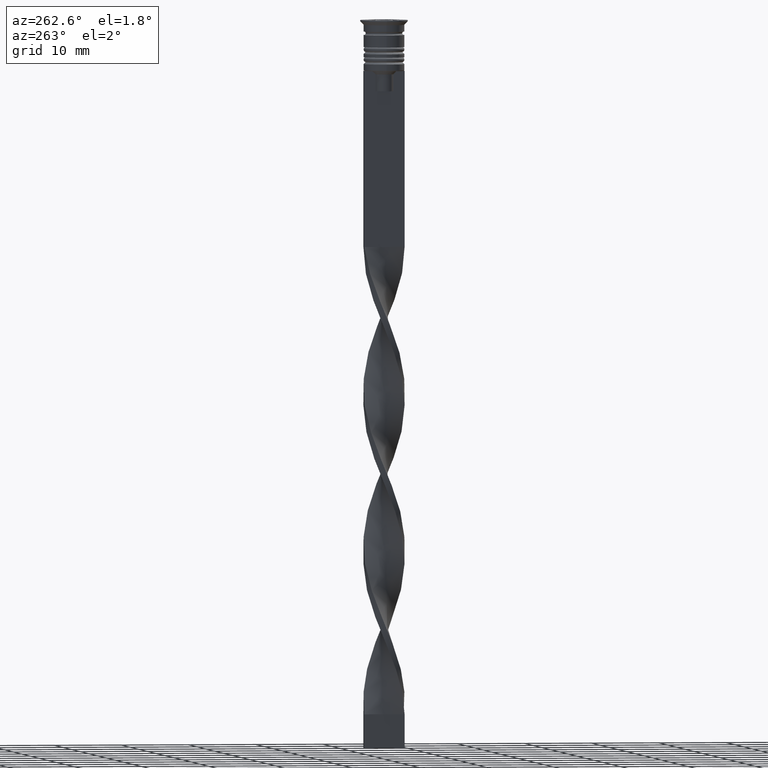
[diagram: clean part render]
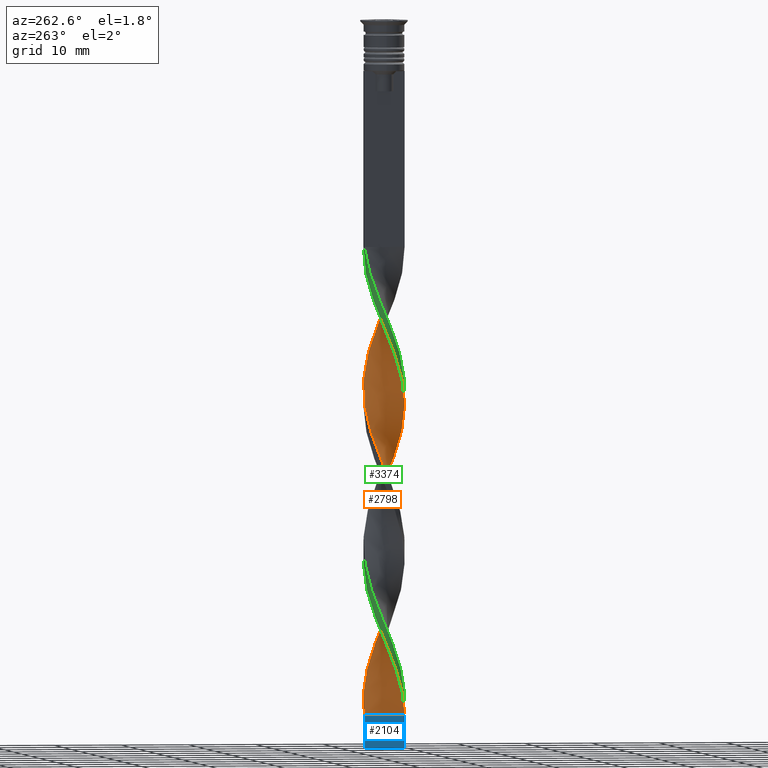
[diagram: same view with three faces highlighted in distinct colors, each labeled with its STEP entity id]
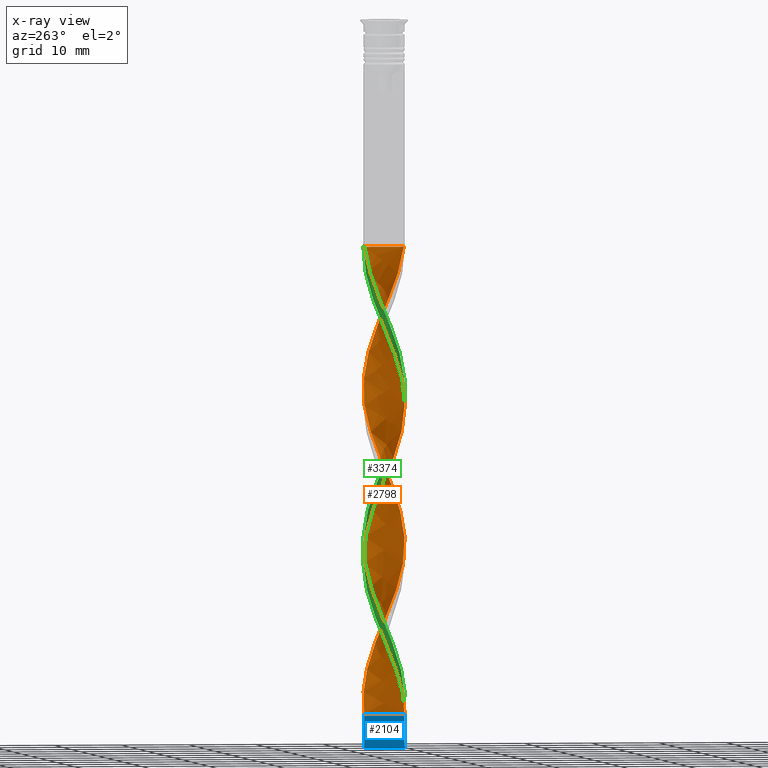
[diagram: x-ray of the same camera — body ghosted, the three highlighted faces saturated]
A machine part, auxiliary view with three faces highlighted in distinct colors.
The next image is the same camera in x-ray (body ghosted, the three faces saturated) — at least one of them is partly hidden behind the body in this view.
Their STEP definitions:

[orange] entity #2798 — the highlighted face is a freeform B-spline surface patch.
#13 = CARTESIAN_POINT ( 'NONE',  ( 1.302196787976888759, 2.773203748730288076, -52.07692307692308020 ) ) ;
#27 = CARTESIAN_POINT ( 'NONE',  ( -1.542569853484617726, -2.647046231879884193, -99.84615384615386802 ) ) ;
#33 = CARTESIAN_POINT ( 'NONE',  ( 0.8642659496667817187, -2.939289008388869640, -34.38461538461538680 ) ) ;
#50 = CARTESIAN_POINT ( 'NONE',  ( 1.836897528957912362, 2.424006490937744118, -75.96153846153846700 ) ) ;
#56 = CARTESIAN_POINT ( 'NONE',  ( 2.752983971046547129, -1.292702307246639704, -40.57692307692308020 ) ) ;
#61 = CARTESIAN_POINT ( 'NONE',  ( -0.2324760841496473773, 3.032483284421934933, -35.26923076923077360 ) ) ;
#65 = CARTESIAN_POINT ( 'NONE',  ( 2.131225204431203668, -2.200966749995606264, -37.92307692307692690 ) ) ;
#74 = VERTEX_POINT ( 'NONE', #251 ) ;
#76 = CARTESIAN_POINT ( 'NONE',  ( 0.9514415033047005643, -2.888729662981513790, -60.03846153846154010 ) ) ;
#82 = CARTESIAN_POINT ( 'NONE',  ( 0.9514415033047012304, 2.888729662981513346, -98.96153846153848122 ) ) ;
#95 = CARTESIAN_POINT ( 'NONE',  ( -3.022034030597048559, 0.5036723384328415376, -45.00000000000000711 ) ) ;
#100 = CARTESIAN_POINT ( 'NONE',  ( 1.203417901575699167, -2.793167620134377582, -81.26923076923077360 ) ) ;
#114 = CARTESIAN_POINT ( 'NONE',  ( -1.615112600636836371, -2.577093573633699730, -74.19230769230769340 ) ) ;
#120 = CARTESIAN_POINT ( 'NONE',  ( 2.441810035334000872, 1.850388947743477397, -48.53846153846154721 ) ) ;
#123 = CARTESIAN_POINT ( 'NONE',  ( -2.752983971046547129, -1.292702307246638815, -49.42307692307693401 ) ) ;
#130 = CARTESIAN_POINT ( 'NONE',  ( 2.627746284534977050, 1.531322782470313726, -93.65384615384617462 ) ) ;
#138 = CARTESIAN_POINT ( 'NONE',  ( -1.928028413296783983, -2.380983398537111828, -73.30769230769232081 ) ) ;
#145 = CARTESIAN_POINT ( 'NONE',  ( 2.982351171577512616, 0.5963065397848995586, -70.65384615384616041 ) ) ;
#149 = CARTESIAN_POINT ( 'NONE',  ( -0.8642659496667828289, -2.939289008388869640, -55.61538461538462741 ) ) ;
#152 = CARTESIAN_POINT ( 'NONE',  ( 2.441810035334000872, 1.850388947743477175, -94.53846153846153300 ) ) ;
#156 = CARTESIAN_POINT ( 'NONE',  ( 0.4999999999999998890, -3.000000000000000000, -79.50000000000001421 ) ) ;
#162 = CARTESIAN_POINT ( 'NONE',  ( -2.596021493184668572, -1.626975080790204586, -50.30769230769231370 ) ) ;
#167 = CARTESIAN_POINT ( 'NONE',  ( 1.542569853484617060, -2.647046231879885081, -82.15384615384617462 ) ) ;
#173 = CARTESIAN_POINT ( 'NONE',  ( -2.441810035334000872, 1.850388947743477841, -87.46153846153849543 ) ) ;
#182 = CARTESIAN_POINT ( 'NONE',  ( 2.917858282166500672, 0.8579644778149956297, -45.88461538461538680 ) ) ;
#192 = CARTESIAN_POINT ( 'NONE',  ( 0.2324760841496463504, -3.032483284421934933, -58.26923076923077360 ) ) ;
#207 = CARTESIAN_POINT ( 'NONE',  ( -2.363623348807936342, -1.913970915392904981, -51.19230769230769340 ) ) ;
#240 = ORIENTED_EDGE ( 'NONE', *, *, #938, .F. ) ;
#249 = CARTESIAN_POINT ( 'NONE',  ( -2.184919224315390984, 2.115686173140295612, -86.57692307692308020 ) ) ;
#251 = CARTESIAN_POINT ( 'NONE',  ( 0.4999999999999998890, -3.000000000000000000, -33.50000000000000000 ) ) ;
#268 = CARTESIAN_POINT ( 'NONE',  ( -3.054755894246598658, -0.2341835458667257397, -92.76923076923075939 ) ) ;
#284 = CARTESIAN_POINT ( 'NONE',  ( 2.917858282166500672, 0.8579644778149956297, -45.88461538461538680 ) ) ;
#304 = CARTESIAN_POINT ( 'NONE',  ( 2.982351171577512172, -0.5963065397849001137, -42.34615384615385381 ) ) ;
#311 = CARTESIAN_POINT ( 'NONE',  ( 2.363623348807935898, -1.913970915392906091, -38.80769230769230660 ) ) ;
#317 = CARTESIAN_POINT ( 'NONE',  ( -1.203417901575700277, -2.793167620134377138, -54.73076923076923350 ) ) ;
#323 = CARTESIAN_POINT ( 'NONE',  ( 0.4999999999999998890, 3.000000000000000000, -79.50000000000001421 ) ) ;
#351 = CARTESIAN_POINT ( 'NONE',  ( -2.184919224315390984, 2.115686173140295612, -40.57692307692308020 ) ) ;
#357 = CARTESIAN_POINT ( 'NONE',  ( -2.627746284534977050, -1.531322782470314170, -70.65384615384616041 ) ) ;
#360 = VERTEX_POINT ( 'NONE', #1284 ) ;
#382 = CARTESIAN_POINT ( 'NONE',  ( 3.038394962421823831, 0.1347443962830572051, -90.11538461538462741 ) ) ;
#392 = CARTESIAN_POINT ( 'NONE',  ( 2.752983971046547129, -1.292702307246639704, -86.57692307692308020 ) ) ;
#396 = CARTESIAN_POINT ( 'NONE',  ( 1.836897528957910364, -2.424006490937745451, -83.03846153846154721 ) ) ;
#402 = CARTESIAN_POINT ( 'NONE',  ( 2.627746284534976606, -1.531322782470315058, -65.34615384615385381 ) ) ;
#406 = CARTESIAN_POINT ( 'NONE',  ( 1.836897528957912362, 2.424006490937744118, -75.96153846153846700 ) ) ;
#410 = CARTESIAN_POINT ( 'NONE',  ( -2.441810035334001761, -1.850388947743476509, -71.53846153846154721 ) ) ;
#415 = CARTESIAN_POINT ( 'NONE',  ( 2.596021493184668572, -1.626975080790205919, -85.69230769230770761 ) ) ;
#425 = CARTESIAN_POINT ( 'NONE',  ( -1.302196787976888315, 2.773203748730288520, -83.92307692307693401 ) ) ;
#431 = CARTESIAN_POINT ( 'NONE',  ( 2.184919224315391872, 2.115686173140295168, -49.42307692307693401 ) ) ;
#437 = CARTESIAN_POINT ( 'NONE',  ( -2.627746284534976606, 1.531322782470314836, -42.34615384615385381 ) ) ;
#442 = CARTESIAN_POINT ( 'NONE',  ( 2.813682533735953228, 1.212256617197150721, -46.76923076923077360 ) ) ;
#453 = CARTESIAN_POINT ( 'NONE',  ( 2.982351171577512616, 0.5963065397848995586, -70.65384615384616041 ) ) ;
#473 = CARTESIAN_POINT ( 'NONE',  ( 2.917858282166500228, -0.8579644778149976281, -67.11538461538461320 ) ) ;
#497 = ORIENTED_EDGE ( 'NONE', *, *, #2661, .F. ) ;
#510 = CARTESIAN_POINT ( 'NONE',  ( 2.363623348807935898, -1.913970915392906091, -38.80769230769230660 ) ) ;
#532 = CARTESIAN_POINT ( 'NONE',  ( 2.441810035334000872, 1.850388947743477175, -48.53846153846154010 ) ) ;
#549 = CARTESIAN_POINT ( 'NONE',  ( 2.596021493184669904, 1.626975080790203032, -73.30769230769232081 ) ) ;
#567 = CARTESIAN_POINT ( 'NONE',  ( 2.131225204431204556, 2.200966749995605820, -75.07692307692308020 ) ) ;
#573 = CARTESIAN_POINT ( 'NONE',  ( 2.131225204431203668, -2.200966749995606264, -37.92307692307692690 ) ) ;
#588 = CARTESIAN_POINT ( 'NONE',  ( -0.2324760841496473773, 3.032483284421934933, -81.26923076923077360 ) ) ;
#600 = CARTESIAN_POINT ( 'NONE',  ( 0.2324760841496463504, -3.032483284421934933, -58.26923076923077360 ) ) ;
#604 = CARTESIAN_POINT ( 'NONE',  ( 0.2324760841496485153, 3.032483284421934489, -100.7307692307692406 ) ) ;
#633 = CARTESIAN_POINT ( 'NONE',  ( -1.542569853484617948, -2.647046231879884193, -53.84615384615384670 ) ) ;
#639 = CARTESIAN_POINT ( 'NONE',  ( -2.596021493184667683, 1.626975080790206141, -62.69230769230770051 ) ) ;
#648 = CARTESIAN_POINT ( 'NONE',  ( 1.203417901575699167, -2.793167620134377582, -81.26923076923077360 ) ) ;
#653 = CARTESIAN_POINT ( 'NONE',  ( -0.5000000000000002220, -3.000000000000000000, -56.50000000000000711 ) ) ;
#657 = CARTESIAN_POINT ( 'NONE',  ( 3.054755894246598658, -0.2341835458667260450, -89.23076923076922640 ) ) ;
#662 = CARTESIAN_POINT ( 'NONE',  ( -2.752983971046547129, 1.292702307246639704, -63.57692307692308731 ) ) ;
#668 = CARTESIAN_POINT ( 'NONE',  ( 2.909946448908426131, 0.9584295337030716011, -71.53846153846154721 ) ) ;
#670 = CARTESIAN_POINT ( 'NONE',  ( -0.2324760841496473773, 3.032483284421934933, -81.26923076923077360 ) ) ;
#673 = CARTESIAN_POINT ( 'NONE',  ( 2.909946448908425243, -0.9584295337030735995, -87.46153846153849543 ) ) ;
#676 = CARTESIAN_POINT ( 'NONE',  ( -2.917858282166500672, -0.8579644778149938533, -68.88461538461538680 ) ) ;
#683 = CARTESIAN_POINT ( 'NONE',  ( 2.131225204431204556, 2.200966749995605820, -75.07692307692308020 ) ) ;
#692 = CARTESIAN_POINT ( 'NONE',  ( -0.9514415033047030068, -2.888729662981513346, -75.96153846153846700 ) ) ;
#700 = CARTESIAN_POINT ( 'NONE',  ( 0.1357340503332183368, 3.060710991611130360, -80.38461538461538680 ) ) ;
#706 = CARTESIAN_POINT ( 'NONE',  ( 1.302196787976888759, 2.773203748730288076, -98.07692307692309441 ) ) ;
#716 = CARTESIAN_POINT ( 'NONE',  ( -3.038394962421823386, 0.1347443962830582320, -45.88461538461538680 ) ) ;
#731 = CARTESIAN_POINT ( 'NONE',  ( -2.752983971046547129, -1.292702307246638815, -49.42307692307693401 ) ) ;
#771 = CARTESIAN_POINT ( 'NONE',  ( -2.813682533735953228, 1.212256617197151165, -89.23076923076922640 ) ) ;
#787 = CARTESIAN_POINT ( 'NONE',  ( 2.813682533735953228, 1.212256617197150721, -46.76923076923076650 ) ) ;
#809 = CARTESIAN_POINT ( 'NONE',  ( 1.203417901575699167, -2.793167620134377582, -35.26923076923077360 ) ) ;
#827 = CARTESIAN_POINT ( 'NONE',  ( 2.627746284534977050, 1.531322782470313726, -47.65384615384616041 ) ) ;
#840 = LINE ( 'NONE', #3192, #2486 ) ;
#844 = CARTESIAN_POINT ( 'NONE',  ( -1.203417901575700277, -2.793167620134377138, -100.7307692307692406 ) ) ;
#858 = CARTESIAN_POINT ( 'NONE',  ( -0.8642659496667827179, -2.939289008388869640, -55.61538461538462741 ) ) ;
#864 = CARTESIAN_POINT ( 'NONE',  ( 1.302196787976888759, 2.773203748730288076, -98.07692307692308020 ) ) ;
#871 = CARTESIAN_POINT ( 'NONE',  ( 2.909946448908425687, -0.9584295337030735995, -41.46153846153846700 ) ) ;
#877 = FACE_OUTER_BOUND ( 'NONE', #1660, .T. ) ;
#882 = CARTESIAN_POINT ( 'NONE',  ( -0.4999999999999995559, 3.000000000000000000, -102.5000000000000142 ) ) ;
#893 = CARTESIAN_POINT ( 'NONE',  ( -0.6006862186325128139, 3.004255577232739949, -36.15384615384615330 ) ) ;
#897 = CARTESIAN_POINT ( 'NONE',  ( -1.928028413296783983, -2.380983398537111828, -73.30769230769232081 ) ) ;
#914 = CARTESIAN_POINT ( 'NONE',  ( -3.054755894246598658, 0.2341835458667258230, -66.23076923076922640 ) ) ;
#923 = CARTESIAN_POINT ( 'NONE',  ( 2.627746284534977050, 1.531322782470313726, -47.65384615384616041 ) ) ;
#933 = CARTESIAN_POINT ( 'NONE',  ( -2.813682533735954117, -1.212256617197149833, -69.76923076923077360 ) ) ;
#935 =( BOUNDED_CURVE ( )  B_SPLINE_CURVE ( 2, ( #2233, #1359, #2426, #1900, #2962, #573, #311, #2441, #56, #871, #3244, #2718, #2994, #2571, #182, #442, #923, #120, #431, #2509, #1176, #3315, #1494, #971, #3047, #1754, #2282, #3360, #987, #1245, #2314, #3377, #1505, #1983, #662, #1445, #2557, #1721, #3060, #1998, #676, #3096, #3076, #2034, #954, #138, #3330, #1481, #692, #3030, #2787, #1200, #156, #2248, #648, #167, #396, #1461, #2268, #415, #1227, #2527, #939, #1735, #382, #2820, #2803, #2832, #2546, #2296, #1214, #2016, #3345, #706, #1765, #1707, #2772, #2115, #3179 ),
 .UNSPECIFIED., .F., .T. ) 
 B_SPLINE_CURVE_WITH_KNOTS ( ( 3, 2, 2, 2, 2, 2, 2, 2, 2, 2, 2, 2, 2, 2, 2, 2, 2, 2, 2, 2, 2, 2, 2, 2, 2, 2, 2, 2, 2, 2, 2, 2, 2, 2, 2, 2, 2, 2, 2, 3 ),
 ( 0.000000000000000000, 0.01923076923076923184, 0.03846153846153846367, 0.05769230769230768857, 0.07692307692307692735, 0.09615384615384615918, 0.1153846153846153771, 0.1346153846153846090, 0.1538461538461538547, 0.1730769230769230449, 0.1923076923076923184, 0.2115384615384615363, 0.2307692307692307543, 0.2500000000000000000, 0.2692307692307692180, 0.2884615384615384359, 0.3076923076923077094, 0.3269230769230769273, 0.3461538461538460898, 0.3653846153846153633, 0.3846153846153846367, 0.4038461538461539102, 0.4230769230769230727, 0.4423076923076922906, 0.4615384615384615086, 0.4807692307692307820, 0.5000000000000000000, 0.5192307692307692735, 0.5384615384615384359, 0.5576923076923077094, 0.5769230769230768718, 0.5961538461538461453, 0.6153846153846154188, 0.6346153846153845812, 0.6538461538461538547, 0.6730769230769230171, 0.6923076923076921796, 0.7115384615384615641, 0.7307692307692307265, 0.7500000000000000000 ),
 .UNSPECIFIED. ) 
 CURVE ( )  GEOMETRIC_REPRESENTATION_ITEM ( )  RATIONAL_B_SPLINE_CURVE ( ( 1.000000000000000000, 0.9927088740980539727, 1.000000000000000000, 0.9927088740980539727, 1.000000000000000000, 0.9927088740980539727, 1.000000000000000000, 0.9927088740980539727, 1.000000000000000000, 0.9927088740980539727, 1.000000000000000000, 0.9927088740980539727, 1.000000000000000000, 0.9927088740980539727, 1.000000000000000000, 0.9927088740980539727, 1.000000000000000000, 0.9927088740980539727, 1.000000000000000000, 0.9927088740980539727, 1.000000000000000000, 0.9927088740980539727, 1.000000000000000000, 0.9927088740980539727, 1.000000000000000000, 0.9927088740980539727, 1.000000000000000000, 0.9927088740980539727, 1.000000000000000000, 0.9927088740980539727, 1.000000000000000000, 0.9927088740980539727, 1.000000000000000000, 0.9927088740980539727, 1.000000000000000000, 0.9927088740980539727, 1.000000000000000000, 0.9927088740980539727, 1.000000000000000000, 0.9927088740980539727, 1.000000000000000000, 0.9927088740980539727, 1.000000000000000000, 0.9927088740980539727, 1.000000000000000000, 0.9927088740980539727, 1.000000000000000000, 0.9927088740980539727, 1.000000000000000000, 0.9927088740980539727, 1.000000000000000000, 0.9927088740980539727, 1.000000000000000000, 0.9927088740980539727, 1.000000000000000000, 0.9927088740980539727, 1.000000000000000000, 0.9927088740980539727, 1.000000000000000000, 0.9927088740980539727, 1.000000000000000000, 0.9927088740980539727, 1.000000000000000000, 0.9927088740980539727, 1.000000000000000000, 0.9927088740980539727, 1.000000000000000000, 0.9927088740980539727, 1.000000000000000000, 0.9927088740980539727, 1.000000000000000000, 0.9927088740980539727, 1.000000000000000000, 0.9927088740980539727, 1.000000000000000000, 0.9927088740980539727, 1.000000000000000000, 0.9927088740980539727, 1.000000000000000000 ) ) 
 REPRESENTATION_ITEM ( '' )  );
#938 = EDGE_CURVE ( 'NONE', #1090, #360, #1413, .T. ) ;
#939 = CARTESIAN_POINT ( 'NONE',  ( 2.982351171577512172, -0.5963065397849001137, -88.34615384615385381 ) ) ;
#945 = CARTESIAN_POINT ( 'NONE',  ( 2.813682533735953228, -1.212256617197150721, -66.23076923076922640 ) ) ;
#948 = CARTESIAN_POINT ( 'NONE',  ( 3.038394962421823386, -0.1347443962830599251, -68.88461538461538680 ) ) ;
#954 = CARTESIAN_POINT ( 'NONE',  ( -2.184919224315392317, -2.115686173140294724, -72.42307692307691980 ) ) ;
#963 = CARTESIAN_POINT ( 'NONE',  ( -2.917858282166500228, 0.8579644778149966289, -44.11538461538462030 ) ) ;
#971 = CARTESIAN_POINT ( 'NONE',  ( 0.6006862186325140351, 3.004255577232739949, -53.84615384615384670 ) ) ;
#980 = CARTESIAN_POINT ( 'NONE',  ( -2.813682533735953228, 1.212256617197151165, -89.23076923076924061 ) ) ;
#987 = CARTESIAN_POINT ( 'NONE',  ( -1.203417901575698279, 2.793167620134377582, -58.26923076923077360 ) ) ;
#994 = CARTESIAN_POINT ( 'NONE',  ( -0.9514415033047005643, 2.888729662981513790, -37.03846153846154010 ) ) ;
#1046 = CARTESIAN_POINT ( 'NONE',  ( -0.6006862186325128139, 3.004255577232739949, -82.15384615384617462 ) ) ;
#1062 = CARTESIAN_POINT ( 'NONE',  ( 2.363623348807936786, 1.913970915392904315, -74.19230769230769340 ) ) ;
#1086 = CARTESIAN_POINT ( 'NONE',  ( -0.4999999999999995559, 3.000000000000000000, -56.50000000000000711 ) ) ;
#1090 = VERTEX_POINT ( 'NONE', #2342 ) ;
#1101 = CARTESIAN_POINT ( 'NONE',  ( 1.542569853484618170, 2.647046231879884193, -76.84615384615386802 ) ) ;
#1116 = CARTESIAN_POINT ( 'NONE',  ( 1.203417901575701610, 2.793167620134376250, -77.73076923076924061 ) ) ;
#1134 = CARTESIAN_POINT ( 'NONE',  ( 1.302196787976887871, -2.773203748730288964, -60.92307692307691980 ) ) ;
#1140 = CARTESIAN_POINT ( 'NONE',  ( 0.6006862186325140351, 3.004255577232739949, -99.84615384615385381 ) ) ;
#1151 = CARTESIAN_POINT ( 'NONE',  ( -3.054755894246598658, -0.2341835458667257397, -46.76923076923076650 ) ) ;
#1156 = CARTESIAN_POINT ( 'NONE',  ( -2.909946448908424799, 0.9584295337030754869, -64.46153846153845279 ) ) ;
#1176 = CARTESIAN_POINT ( 'NONE',  ( 1.615112600636835927, 2.577093573633700174, -51.19230769230769340 ) ) ;
#1190 = CARTESIAN_POINT ( 'NONE',  ( -0.1357340503332169768, 3.060710991611130360, -101.6153846153846132 ) ) ;
#1200 = CARTESIAN_POINT ( 'NONE',  ( 0.1357340503332165882, -3.060710991611130805, -78.61538461538461320 ) ) ;
#1205 = CARTESIAN_POINT ( 'NONE',  ( 2.752983971046547573, 1.292702307246638371, -72.42307692307691980 ) ) ;
#1208 = CARTESIAN_POINT ( 'NONE',  ( 2.627746284534976606, -1.531322782470315058, -65.34615384615385381 ) ) ;
#1213 = CARTESIAN_POINT ( 'NONE',  ( -0.5000000000000002220, -3.000000000000000000, -102.5000000000000142 ) ) ;
#1214 = CARTESIAN_POINT ( 'NONE',  ( 2.184919224315391872, 2.115686173140295168, -95.42307692307693401 ) ) ;
#1221 = CARTESIAN_POINT ( 'NONE',  ( 0.4999999999999998890, 3.000000000000000000, -33.50000000000000000 ) ) ;
#1227 = CARTESIAN_POINT ( 'NONE',  ( 2.752983971046547129, -1.292702307246639704, -86.57692307692308020 ) ) ;
#1237 = CARTESIAN_POINT ( 'NONE',  ( 2.909946448908426575, 0.9584295337030716011, -71.53846153846154721 ) ) ;
#1245 = CARTESIAN_POINT ( 'NONE',  ( -1.542569853484615727, 2.647046231879885525, -59.15384615384616041 ) ) ;
#1255 = CARTESIAN_POINT ( 'NONE',  ( -1.836897528957911030, -2.424006490937745006, -52.96153846153845990 ) ) ;
#1270 = CARTESIAN_POINT ( 'NONE',  ( -2.909946448908425687, -0.9584295337030731554, -48.53846153846154721 ) ) ;
#1284 = CARTESIAN_POINT ( 'NONE',  ( -0.4999999999999995559, 3.000000000000000000, -102.5000000000000142 ) ) ;
#1288 = DIRECTION ( 'NONE',  ( 0.000000000000000000, 1.000000000000000000, 0.000000000000000000 ) ) ;
#1314 = CARTESIAN_POINT ( 'NONE',  ( -2.627746284534976606, 1.531322782470314836, -88.34615384615385381 ) ) ;
#1326 = CARTESIAN_POINT ( 'NONE',  ( -1.836897528957911030, -2.424006490937745006, -98.96153846153848122 ) ) ;
#1331 = CARTESIAN_POINT ( 'NONE',  ( 1.615112600636835927, 2.577093573633700174, -51.19230769230769340 ) ) ;
#1351 = CARTESIAN_POINT ( 'NONE',  ( 0.2324760841496485153, 3.032483284421934489, -54.73076923076923350 ) ) ;
#1359 = CARTESIAN_POINT ( 'NONE',  ( 0.8642659496667816077, -2.939289008388869640, -34.38461538461538680 ) ) ;
#1372 = CARTESIAN_POINT ( 'NONE',  ( -1.203417901575698279, 2.793167620134377582, -58.26923076923077360 ) ) ;
#1383 = CARTESIAN_POINT ( 'NONE',  ( 0.4999999999999998890, 3.000000000000000000, -33.50000000000000000 ) ) ;
#1387 = CARTESIAN_POINT ( 'NONE',  ( 0.1357340503332183645, 3.060710991611130360, -80.38461538461538680 ) ) ;
#1401 = CARTESIAN_POINT ( 'NONE',  ( -2.813682533735953228, 1.212256617197151165, -43.23076923076922640 ) ) ;
#1405 = CARTESIAN_POINT ( 'NONE',  ( 1.542569853484617060, -2.647046231879885081, -82.15384615384617462 ) ) ;
#1413 = B_SPLINE_CURVE_WITH_KNOTS ( 'NONE', 3,
 ( #1213, #2060, #2866, #2281 ),
 .UNSPECIFIED., .F., .F.,
 ( 4, 4 ),
 ( 0.000000000000000000, 1.000000000000000000 ),
 .UNSPECIFIED. ) ;
#1420 = CARTESIAN_POINT ( 'NONE',  ( 1.615112600636834372, -2.577093573633701062, -61.80769230769231370 ) ) ;
#1445 = CARTESIAN_POINT ( 'NONE',  ( -2.909946448908425243, 0.9584295337030753759, -64.46153846153845279 ) ) ;
#1456 = CARTESIAN_POINT ( 'NONE',  ( 2.917858282166500672, 0.8579644778149956297, -91.88461538461540101 ) ) ;
#1461 = CARTESIAN_POINT ( 'NONE',  ( 2.131225204431203668, -2.200966749995606264, -83.92307692307693401 ) ) ;
#1466 = CARTESIAN_POINT ( 'NONE',  ( 2.184919224315390984, -2.115686173140295612, -63.57692307692308731 ) ) ;
#1470 = CARTESIAN_POINT ( 'NONE',  ( -2.982351171577512616, -0.5963065397848991145, -47.65384615384616041 ) ) ;
#1473 = CARTESIAN_POINT ( 'NONE',  ( -2.917858282166500672, -0.8579644778149938533, -68.88461538461538680 ) ) ;
#1481 = CARTESIAN_POINT ( 'NONE',  ( -1.302196787976888759, -2.773203748730288076, -75.07692307692308020 ) ) ;
#1489 = CARTESIAN_POINT ( 'NONE',  ( -1.615112600636834816, 2.577093573633700618, -84.80769230769232081 ) ) ;
#1494 = CARTESIAN_POINT ( 'NONE',  ( 0.9514415033047012304, 2.888729662981513346, -52.96153846153845990 ) ) ;
#1500 = CARTESIAN_POINT ( 'NONE',  ( 1.928028413296780874, -2.380983398537114493, -62.69230769230770051 ) ) ;
#1505 = CARTESIAN_POINT ( 'NONE',  ( -2.363623348807935898, 1.913970915392906536, -61.80769230769231370 ) ) ;
#1515 = CARTESIAN_POINT ( 'NONE',  ( 1.542569853484617948, 2.647046231879884193, -76.84615384615386802 ) ) ;
#1533 = CARTESIAN_POINT ( 'NONE',  ( 2.752983971046547573, 1.292702307246638371, -72.42307692307691980 ) ) ;
#1546 = CARTESIAN_POINT ( 'NONE',  ( -2.909946448908425687, -0.9584295337030731554, -94.53846153846154721 ) ) ;
#1564 = CARTESIAN_POINT ( 'NONE',  ( -2.917858282166500228, 0.8579644778149966289, -90.11538461538462741 ) ) ;
#1570 = CARTESIAN_POINT ( 'NONE',  ( -1.302196787976888093, 2.773203748730288520, -83.92307692307691980 ) ) ;
#1588 = CARTESIAN_POINT ( 'NONE',  ( -3.022034030597048559, 0.5036723384328415376, -91.00000000000001421 ) ) ;
#1594 = CARTESIAN_POINT ( 'NONE',  ( 2.184919224315391872, 2.115686173140295168, -49.42307692307693401 ) ) ;
#1607 = CARTESIAN_POINT ( 'NONE',  ( -2.982351171577512616, -0.5963065397848991145, -93.65384615384617462 ) ) ;
#1611 = CARTESIAN_POINT ( 'NONE',  ( -2.982351171577512616, -0.5963065397848991145, -93.65384615384617462 ) ) ;
#1628 = CARTESIAN_POINT ( 'NONE',  ( -1.928028413296781762, 2.380983398537113604, -85.69230769230770761 ) ) ;
#1652 = CARTESIAN_POINT ( 'NONE',  ( 1.836897528957910364, -2.424006490937745451, -37.03846153846154010 ) ) ;
#1660 = EDGE_LOOP ( 'NONE', ( #497, #1826, #240, #2171 ) ) ;
#1664 = CARTESIAN_POINT ( 'NONE',  ( -3.022034030597048559, -0.5036723384328407604, -68.00000000000000000 ) ) ;
#1675 = CARTESIAN_POINT ( 'NONE',  ( -2.363623348807936342, -1.913970915392904981, -51.19230769230769340 ) ) ;
#1678 = CARTESIAN_POINT ( 'NONE',  ( 2.131225204431203668, -2.200966749995606264, -83.92307692307691980 ) ) ;
#1707 = CARTESIAN_POINT ( 'NONE',  ( 0.6006862186325140351, 3.004255577232739949, -99.84615384615386802 ) ) ;
#1717 = CARTESIAN_POINT ( 'NONE',  ( 0.8642659496667817187, -2.939289008388869640, -80.38461538461538680 ) ) ;
#1721 = CARTESIAN_POINT ( 'NONE',  ( -3.054755894246598658, 0.2341835458667258507, -66.23076923076922640 ) ) ;
#1725 = CARTESIAN_POINT ( 'NONE',  ( 3.022034030597048559, -0.5036723384328418707, -68.00000000000000000 ) ) ;
#1729 = CARTESIAN_POINT ( 'NONE',  ( -0.6006862186325128139, 3.004255577232739949, -82.15384615384617462 ) ) ;
#1732 = CARTESIAN_POINT ( 'NONE',  ( 2.184919224315391872, 2.115686173140295168, -95.42307692307693401 ) ) ;
#1735 = CARTESIAN_POINT ( 'NONE',  ( 3.054755894246598658, -0.2341835458667260728, -89.23076923076924061 ) ) ;
#1744 = CARTESIAN_POINT ( 'NONE',  ( 1.203417901575701610, 2.793167620134376250, -77.73076923076924061 ) ) ;
#1754 = CARTESIAN_POINT ( 'NONE',  ( -0.1357340503332169490, 3.060710991611130360, -55.61538461538462741 ) ) ;
#1759 = CARTESIAN_POINT ( 'NONE',  ( -1.615112600636834816, 2.577093573633700618, -38.80769230769230660 ) ) ;
#1765 = CARTESIAN_POINT ( 'NONE',  ( 0.9514415033047012304, 2.888729662981513346, -98.96153846153848122 ) ) ;
#1774 = CARTESIAN_POINT ( 'NONE',  ( -2.131225204431204112, -2.200966749995605820, -52.07692307692308020 ) ) ;
#1791 = CARTESIAN_POINT ( 'NONE',  ( -1.928028413296781762, 2.380983398537114049, -39.69230769230769340 ) ) ;
#1826 = ORIENTED_EDGE ( 'NONE', *, *, #2224, .T. ) ;
#1832 = CARTESIAN_POINT ( 'NONE',  ( -2.363623348807936342, -1.913970915392904981, -97.19230769230770761 ) ) ;
#1839 = EDGE_CURVE ( 'NONE', #1986, #1090, #2918, .T. ) ;
#1843 = CARTESIAN_POINT ( 'NONE',  ( -2.363623348807936342, -1.913970915392904981, -97.19230769230770761 ) ) ;
#1850 = CARTESIAN_POINT ( 'NONE',  ( -1.615112600636834816, 2.577093573633700618, -84.80769230769232081 ) ) ;
#1874 = CARTESIAN_POINT ( 'NONE',  ( 3.038394962421823831, 0.1347443962830572051, -44.11538461538462030 ) ) ;
#1893 = CARTESIAN_POINT ( 'NONE',  ( -2.909946448908425243, -0.9584295337030731554, -94.53846153846153300 ) ) ;
#1900 = CARTESIAN_POINT ( 'NONE',  ( 1.542569853484617060, -2.647046231879885081, -36.15384615384615330 ) ) ;
#1909 = CARTESIAN_POINT ( 'NONE',  ( -0.8642659496667827179, -2.939289008388869640, -101.6153846153846132 ) ) ;
#1924 = CARTESIAN_POINT ( 'NONE',  ( -2.982351171577512616, -0.5963065397848991145, -47.65384615384616041 ) ) ;
#1941 = CARTESIAN_POINT ( 'NONE',  ( 0.4999999999999998890, 3.000000000000000000, -33.50000000000000000 ) ) ;
#1956 = CARTESIAN_POINT ( 'NONE',  ( -1.302196787976888093, 2.773203748730288520, -37.92307692307692690 ) ) ;
#1960 = CARTESIAN_POINT ( 'NONE',  ( 1.836897528957910364, -2.424006490937745451, -83.03846153846154721 ) ) ;
#1973 = CARTESIAN_POINT ( 'NONE',  ( -2.131225204431204112, -2.200966749995605820, -52.07692307692308020 ) ) ;
#1978 = CARTESIAN_POINT ( 'NONE',  ( 2.596021493184668572, -1.626975080790205697, -85.69230769230770761 ) ) ;
#1983 = CARTESIAN_POINT ( 'NONE',  ( -2.596021493184667683, 1.626975080790206141, -62.69230769230770051 ) ) ;
#1986 = VERTEX_POINT ( 'NONE', #1383 ) ;
#1988 = CARTESIAN_POINT ( 'NONE',  ( -3.038394962421823386, 0.1347443962830582320, -45.88461538461538680 ) ) ;
#1991 = CARTESIAN_POINT ( 'NONE',  ( -0.5000000000000002220, -3.000000000000000000, -56.50000000000000711 ) ) ;
#1994 = CARTESIAN_POINT ( 'NONE',  ( -1.836897528957910364, 2.424006490937745451, -60.03846153846154010 ) ) ;
#1998 = CARTESIAN_POINT ( 'NONE',  ( -3.022034030597048559, -0.5036723384328408715, -68.00000000000000000 ) ) ;
#2005 = CARTESIAN_POINT ( 'NONE',  ( 3.038394962421823386, -0.1347443962830599251, -68.88461538461538680 ) ) ;
#2009 = CARTESIAN_POINT ( 'NONE',  ( 3.054755894246598658, 0.2341835458667245740, -69.76923076923077360 ) ) ;
#2016 = CARTESIAN_POINT ( 'NONE',  ( 1.928028413296782428, 2.380983398537112716, -96.30769230769232081 ) ) ;
#2025 = CARTESIAN_POINT ( 'NONE',  ( 0.8642659496667832730, 2.939289008388869195, -78.61538461538461320 ) ) ;
#2034 = CARTESIAN_POINT ( 'NONE',  ( -2.441810035334001761, -1.850388947743476509, -71.53846153846154721 ) ) ;
#2042 = CARTESIAN_POINT ( 'NONE',  ( -2.441810035334000872, 1.850388947743477841, -41.46153846153846700 ) ) ;
#2056 = CARTESIAN_POINT ( 'NONE',  ( -2.184919224315390984, 2.115686173140295612, -40.57692307692308020 ) ) ;
#2060 = CARTESIAN_POINT ( 'NONE',  ( -0.5000000000000000000, -1.000000000000000000, -102.5000000000000142 ) ) ;
#2071 = CARTESIAN_POINT ( 'NONE',  ( -3.054755894246598658, -0.2341835458667257397, -92.76923076923077360 ) ) ;
#2091 = CARTESIAN_POINT ( 'NONE',  ( -2.752983971046547129, -1.292702307246638815, -95.42307692307693401 ) ) ;
#2113 = CARTESIAN_POINT ( 'NONE',  ( 3.054755894246598658, -0.2341835458667260450, -43.23076923076922640 ) ) ;
#2115 = CARTESIAN_POINT ( 'NONE',  ( -0.1357340503332169490, 3.060710991611130360, -101.6153846153846274 ) ) ;
#2130 = CARTESIAN_POINT ( 'NONE',  ( 2.909946448908425243, -0.9584295337030735995, -41.46153846153846700 ) ) ;
#2152 = CARTESIAN_POINT ( 'NONE',  ( 2.596021493184668572, -1.626975080790205697, -39.69230769230769340 ) ) ;
#2169 = CARTESIAN_POINT ( 'NONE',  ( -3.022034030597048559, 0.5036723384328415376, -91.00000000000001421 ) ) ;
#2171 = ORIENTED_EDGE ( 'NONE', *, *, #1839, .F. ) ;
#2188 = CARTESIAN_POINT ( 'NONE',  ( 0.1357340503332165604, -3.060710991611130805, -78.61538461538461320 ) ) ;
#2205 = CARTESIAN_POINT ( 'NONE',  ( -2.917858282166500228, 0.8579644778149966289, -44.11538461538462030 ) ) ;
#2222 = CARTESIAN_POINT ( 'NONE',  ( 0.6006862186325115927, -3.004255577232740393, -59.15384615384616041 ) ) ;
#2224 = EDGE_CURVE ( 'NONE', #74, #360, #935, .T. ) ;
#2227 = CARTESIAN_POINT ( 'NONE',  ( 3.022034030597048559, 0.5036723384328410935, -91.00000000000001421 ) ) ;
#2233 = CARTESIAN_POINT ( 'NONE',  ( 0.4999999999999998890, -3.000000000000000000, -33.50000000000000000 ) ) ;
#2241 = CARTESIAN_POINT ( 'NONE',  ( -2.363623348807935898, 1.913970915392906536, -61.80769230769231370 ) ) ;
#2248 = CARTESIAN_POINT ( 'NONE',  ( 0.8642659496667816077, -2.939289008388869640, -80.38461538461538680 ) ) ;
#2262 = CARTESIAN_POINT ( 'NONE',  ( -2.131225204431203668, 2.200966749995606708, -60.92307692307691980 ) ) ;
#2268 = CARTESIAN_POINT ( 'NONE',  ( 2.363623348807935898, -1.913970915392906091, -84.80769230769232081 ) ) ;
#2274 = CARTESIAN_POINT ( 'NONE',  ( 1.928028413296780874, -2.380983398537114049, -62.69230769230770051 ) ) ;
#2276 = CARTESIAN_POINT ( 'NONE',  ( -0.2324760841496473773, 3.032483284421934933, -35.26923076923077360 ) ) ;
#2281 = CARTESIAN_POINT ( 'NONE',  ( -0.4999999999999995559, 3.000000000000000000, -102.5000000000000142 ) ) ;
#2282 = CARTESIAN_POINT ( 'NONE',  ( -0.4999999999999995559, 3.000000000000000000, -56.50000000000000711 ) ) ;
#2290 = CARTESIAN_POINT ( 'NONE',  ( -2.813682533735953228, 1.212256617197151165, -43.23076923076923350 ) ) ;
#2296 = CARTESIAN_POINT ( 'NONE',  ( 2.441810035334000872, 1.850388947743477397, -94.53846153846154721 ) ) ;
#2305 = CARTESIAN_POINT ( 'NONE',  ( -2.627746284534976606, 1.531322782470314836, -88.34615384615385381 ) ) ;
#2314 = CARTESIAN_POINT ( 'NONE',  ( -1.836897528957910364, 2.424006490937745451, -60.03846153846154010 ) ) ;
#2322 = CARTESIAN_POINT ( 'NONE',  ( 3.022034030597048559, -0.5036723384328418707, -68.00000000000000000 ) ) ;
#2337 = CARTESIAN_POINT ( 'NONE',  ( -1.302196787976888315, 2.773203748730288520, -37.92307692307692690 ) ) ;
#2342 = CARTESIAN_POINT ( 'NONE',  ( -0.5000000000000002220, -3.000000000000000000, -102.5000000000000142 ) ) ;
#2379 = CARTESIAN_POINT ( 'NONE',  ( -2.131225204431204112, -2.200966749995605820, -98.07692307692308020 ) ) ;
#2396 = CARTESIAN_POINT ( 'NONE',  ( -1.542569853484617948, -2.647046231879884193, -99.84615384615385381 ) ) ;
#2416 = CARTESIAN_POINT ( 'NONE',  ( -0.1357340503332169768, 3.060710991611130360, -55.61538461538462741 ) ) ;
#2426 = CARTESIAN_POINT ( 'NONE',  ( 1.203417901575699167, -2.793167620134377582, -35.26923076923077360 ) ) ;
#2436 = CARTESIAN_POINT ( 'NONE',  ( -1.542569853484615727, 2.647046231879885525, -59.15384615384616041 ) ) ;
#2441 = CARTESIAN_POINT ( 'NONE',  ( 2.596021493184668572, -1.626975080790205919, -39.69230769230769340 ) ) ;
#2446 = CARTESIAN_POINT ( 'NONE',  ( -2.909946448908425243, -0.9584295337030731554, -48.53846153846154010 ) ) ;
#2449 = CARTESIAN_POINT ( 'NONE',  ( 0.4999999999999998890, -3.000000000000000000, -33.50000000000000000 ) ) ;
#2461 = CARTESIAN_POINT ( 'NONE',  ( -0.9514415033047005643, 2.888729662981513790, -37.03846153846154010 ) ) ;
#2465 = CARTESIAN_POINT ( 'NONE',  ( 2.982351171577512172, -0.5963065397849001137, -88.34615384615385381 ) ) ;
#2486 = VECTOR ( 'NONE', #1288, 1000.000000000000000 ) ;
#2490 = CARTESIAN_POINT ( 'NONE',  ( -2.752983971046547129, 1.292702307246639704, -63.57692307692308731 ) ) ;
#2504 = CARTESIAN_POINT ( 'NONE',  ( -0.9514415033047030068, -2.888729662981513346, -75.96153846153846700 ) ) ;
#2509 = CARTESIAN_POINT ( 'NONE',  ( 1.928028413296782428, 2.380983398537112716, -50.30769230769231370 ) ) ;
#2515 = CARTESIAN_POINT ( 'NONE',  ( 0.1357340503332183645, 3.060710991611130360, -34.38461538461538680 ) ) ;
#2521 = CARTESIAN_POINT ( 'NONE',  ( 2.813682533735953228, 1.212256617197150721, -92.76923076923075939 ) ) ;
#2527 = CARTESIAN_POINT ( 'NONE',  ( 2.909946448908425687, -0.9584295337030735995, -87.46153846153849543 ) ) ;
#2533 = CARTESIAN_POINT ( 'NONE',  ( 2.917858282166500228, -0.8579644778149976281, -67.11538461538461320 ) ) ;
#2536 = CARTESIAN_POINT ( 'NONE',  ( 2.184919224315390984, -2.115686173140295612, -63.57692307692308731 ) ) ;
#2540 = CARTESIAN_POINT ( 'NONE',  ( 1.615112600636835927, 2.577093573633700174, -97.19230769230770761 ) ) ;
#2546 = CARTESIAN_POINT ( 'NONE',  ( 2.627746284534977050, 1.531322782470313726, -93.65384615384617462 ) ) ;
#2553 = CARTESIAN_POINT ( 'NONE',  ( -1.928028413296781762, 2.380983398537114049, -85.69230769230770761 ) ) ;
#2557 = CARTESIAN_POINT ( 'NONE',  ( -2.982351171577512172, 0.5963065397849003357, -65.34615384615385381 ) ) ;
#2564 = CARTESIAN_POINT ( 'NONE',  ( -1.203417901575700277, -2.793167620134377138, -54.73076923076923350 ) ) ;
#2571 = CARTESIAN_POINT ( 'NONE',  ( 3.022034030597048559, 0.5036723384328410935, -45.00000000000000711 ) ) ;
#2583 = CARTESIAN_POINT ( 'NONE',  ( -3.054755894246598658, -0.2341835458667257397, -46.76923076923077360 ) ) ;
#2600 = CARTESIAN_POINT ( 'NONE',  ( 0.1357340503332183368, 3.060710991611130360, -34.38461538461538680 ) ) ;
#2616 = CARTESIAN_POINT ( 'NONE',  ( -0.5000000000000002220, -3.000000000000000000, -102.5000000000000142 ) ) ;
#2635 = CARTESIAN_POINT ( 'NONE',  ( -2.596021493184668572, -1.626975080790204586, -96.30769230769232081 ) ) ;
#2641 = CARTESIAN_POINT ( 'NONE',  ( 2.752983971046547129, -1.292702307246639704, -40.57692307692308020 ) ) ;
#2660 = CARTESIAN_POINT ( 'NONE',  ( 1.928028413296782428, 2.380983398537112716, -50.30769230769232081 ) ) ;
#2661 = EDGE_CURVE ( 'NONE', #74, #1986, #840, .T. ) ;
#2673 = CARTESIAN_POINT ( 'NONE',  ( -2.131225204431204112, -2.200966749995605820, -98.07692307692309441 ) ) ;
#2677 = CARTESIAN_POINT ( 'NONE',  ( 0.6006862186325140351, 3.004255577232739949, -53.84615384615384670 ) ) ;
#2694 = CARTESIAN_POINT ( 'NONE',  ( -2.752983971046547129, -1.292702307246638815, -95.42307692307693401 ) ) ;
#2709 = CARTESIAN_POINT ( 'NONE',  ( -1.836897528957911030, -2.424006490937745006, -52.96153846153845990 ) ) ;
#2714 = CARTESIAN_POINT ( 'NONE',  ( 0.8642659496667831620, 2.939289008388869195, -78.61538461538461320 ) ) ;
#2718 = CARTESIAN_POINT ( 'NONE',  ( 3.054755894246598658, -0.2341835458667260728, -43.23076923076923350 ) ) ;
#2725 = CARTESIAN_POINT ( 'NONE',  ( -1.615112600636834816, 2.577093573633700618, -38.80769230769230660 ) ) ;
#2742 = CARTESIAN_POINT ( 'NONE',  ( -2.627746284534976606, 1.531322782470314836, -42.34615384615385381 ) ) ;
#2747 = CARTESIAN_POINT ( 'NONE',  ( -0.2324760841496502084, -3.032483284421934489, -77.73076923076924061 ) ) ;
#2766 = CARTESIAN_POINT ( 'NONE',  ( -0.6006862186325142572, -3.004255577232739949, -76.84615384615386802 ) ) ;
#2772 = CARTESIAN_POINT ( 'NONE',  ( 0.2324760841496485153, 3.032483284421934489, -100.7307692307692406 ) ) ;
#2783 = CARTESIAN_POINT ( 'NONE',  ( -3.038394962421823831, -0.1347443962830561781, -67.11538461538461320 ) ) ;
#2787 = CARTESIAN_POINT ( 'NONE',  ( -0.2324760841496502084, -3.032483284421934489, -77.73076923076924061 ) ) ;
#2791 = CARTESIAN_POINT ( 'NONE',  ( 3.054755894246598658, 0.2341835458667246017, -69.76923076923077360 ) ) ;
#2794 = CARTESIAN_POINT ( 'NONE',  ( -0.9514415033047005643, 2.888729662981513790, -83.03846153846154721 ) ) ;
#2797 = CARTESIAN_POINT ( 'NONE',  ( 1.928028413296782428, 2.380983398537112716, -96.30769230769232081 ) ) ;
#2798 = ADVANCED_FACE ( 'NONE', ( #877 ), #3071, .T. ) ;
#2803 = CARTESIAN_POINT ( 'NONE',  ( 2.917858282166500672, 0.8579644778149956297, -91.88461538461540101 ) ) ;
#2814 = CARTESIAN_POINT ( 'NONE',  ( 1.302196787976888093, -2.773203748730288964, -60.92307692307692690 ) ) ;
#2820 = CARTESIAN_POINT ( 'NONE',  ( 3.022034030597048559, 0.5036723384328410935, -91.00000000000001421 ) ) ;
#2826 = CARTESIAN_POINT ( 'NONE',  ( -2.184919224315390984, 2.115686173140295612, -86.57692307692308020 ) ) ;
#2832 = CARTESIAN_POINT ( 'NONE',  ( 2.813682533735953228, 1.212256617197150721, -92.76923076923077360 ) ) ;
#2841 = CARTESIAN_POINT ( 'NONE',  ( 2.441810035333999540, -1.850388947743479173, -64.46153846153845279 ) ) ;
#2859 = CARTESIAN_POINT ( 'NONE',  ( 1.615112600636834372, -2.577093573633701062, -61.80769230769231370 ) ) ;
#2866 = CARTESIAN_POINT ( 'NONE',  ( -0.4999999999999997780, 1.000000000000000000, -102.5000000000000142 ) ) ;
#2877 = CARTESIAN_POINT ( 'NONE',  ( -3.038394962421823386, 0.1347443962830582320, -91.88461538461540101 ) ) ;
#2895 = CARTESIAN_POINT ( 'NONE',  ( -1.836897528957911030, -2.424006490937745006, -98.96153846153848122 ) ) ;
#2915 = CARTESIAN_POINT ( 'NONE',  ( -2.596021493184668572, -1.626975080790204364, -96.30769230769232081 ) ) ;
#2918 =( BOUNDED_CURVE ( )  B_SPLINE_CURVE ( 2, ( #1221, #2600, #2276, #3370, #994, #2337, #1759, #1791, #2056, #2042, #437, #2290, #963, #3117, #716, #2583, #1470, #1270, #731, #162, #207, #1774, #1255, #3103, #2564, #149, #1991, #3054, #192, #3352, #3386, #2814, #2859, #1500, #2536, #2841, #1208, #3338, #473, #2322, #948, #2009, #453, #1237, #1533, #3401, #3067, #683, #406, #1515, #1744, #2025, #3086, #700, #670, #1729, #2794, #425, #1489, #2553, #2826, #173, #2305, #980, #1564, #1588, #2877, #2071, #1607, #1546, #2091, #2635, #1843, #2673, #1326, #27, #3156, #2932, #2616 ),
 .UNSPECIFIED., .F., .T. ) 
 B_SPLINE_CURVE_WITH_KNOTS ( ( 3, 2, 2, 2, 2, 2, 2, 2, 2, 2, 2, 2, 2, 2, 2, 2, 2, 2, 2, 2, 2, 2, 2, 2, 2, 2, 2, 2, 2, 2, 2, 2, 2, 2, 2, 2, 2, 2, 2, 3 ),
 ( 0.000000000000000000, 0.01923076923076923184, 0.03846153846153846367, 0.05769230769230768857, 0.07692307692307692735, 0.09615384615384615918, 0.1153846153846153771, 0.1346153846153846090, 0.1538461538461538547, 0.1730769230769230449, 0.1923076923076923184, 0.2115384615384615363, 0.2307692307692307543, 0.2500000000000000000, 0.2692307692307692180, 0.2884615384615384359, 0.3076923076923077094, 0.3269230769230769273, 0.3461538461538460898, 0.3653846153846153633, 0.3846153846153846367, 0.4038461538461539102, 0.4230769230769230727, 0.4423076923076922906, 0.4615384615384615086, 0.4807692307692307820, 0.5000000000000000000, 0.5192307692307692735, 0.5384615384615384359, 0.5576923076923077094, 0.5769230769230768718, 0.5961538461538461453, 0.6153846153846154188, 0.6346153846153845812, 0.6538461538461538547, 0.6730769230769230171, 0.6923076923076921796, 0.7115384615384615641, 0.7307692307692307265, 0.7500000000000000000 ),
 .UNSPECIFIED. ) 
 CURVE ( )  GEOMETRIC_REPRESENTATION_ITEM ( )  RATIONAL_B_SPLINE_CURVE ( ( 1.000000000000000000, 0.9927088740980539727, 1.000000000000000000, 0.9927088740980539727, 1.000000000000000000, 0.9927088740980539727, 1.000000000000000000, 0.9927088740980539727, 1.000000000000000000, 0.9927088740980539727, 1.000000000000000000, 0.9927088740980539727, 1.000000000000000000, 0.9927088740980539727, 1.000000000000000000, 0.9927088740980539727, 1.000000000000000000, 0.9927088740980539727, 1.000000000000000000, 0.9927088740980539727, 1.000000000000000000, 0.9927088740980539727, 1.000000000000000000, 0.9927088740980539727, 1.000000000000000000, 0.9927088740980539727, 1.000000000000000000, 0.9927088740980539727, 1.000000000000000000, 0.9927088740980539727, 1.000000000000000000, 0.9927088740980539727, 1.000000000000000000, 0.9927088740980539727, 1.000000000000000000, 0.9927088740980539727, 1.000000000000000000, 0.9927088740980539727, 1.000000000000000000, 0.9927088740980539727, 1.000000000000000000, 0.9927088740980539727, 1.000000000000000000, 0.9927088740980539727, 1.000000000000000000, 0.9927088740980539727, 1.000000000000000000, 0.9927088740980539727, 1.000000000000000000, 0.9927088740980539727, 1.000000000000000000, 0.9927088740980539727, 1.000000000000000000, 0.9927088740980539727, 1.000000000000000000, 0.9927088740980539727, 1.000000000000000000, 0.9927088740980539727, 1.000000000000000000, 0.9927088740980539727, 1.000000000000000000, 0.9927088740980539727, 1.000000000000000000, 0.9927088740980539727, 1.000000000000000000, 0.9927088740980539727, 1.000000000000000000, 0.9927088740980539727, 1.000000000000000000, 0.9927088740980539727, 1.000000000000000000, 0.9927088740980539727, 1.000000000000000000, 0.9927088740980539727, 1.000000000000000000, 0.9927088740980539727, 1.000000000000000000, 0.9927088740980539727, 1.000000000000000000 ) ) 
 REPRESENTATION_ITEM ( '' )  );
#2932 = CARTESIAN_POINT ( 'NONE',  ( -0.8642659496667828289, -2.939289008388869640, -101.6153846153846274 ) ) ;
#2937 = CARTESIAN_POINT ( 'NONE',  ( 0.9514415033047012304, 2.888729662981513346, -52.96153846153845990 ) ) ;
#2956 = CARTESIAN_POINT ( 'NONE',  ( -3.038394962421823386, 0.1347443962830582320, -91.88461538461540101 ) ) ;
#2962 = CARTESIAN_POINT ( 'NONE',  ( 1.836897528957910364, -2.424006490937745451, -37.03846153846154010 ) ) ;
#2974 = CARTESIAN_POINT ( 'NONE',  ( -0.5000000000000002220, -3.000000000000000000, -102.5000000000000142 ) ) ;
#2985 = CARTESIAN_POINT ( 'NONE',  ( -0.1357340503332189474, -3.060710991611130360, -57.38461538461538680 ) ) ;
#2994 = CARTESIAN_POINT ( 'NONE',  ( 3.038394962421823831, 0.1347443962830572051, -44.11538461538462030 ) ) ;
#3000 = CARTESIAN_POINT ( 'NONE',  ( -2.441810035334000872, 1.850388947743477619, -41.46153846153846700 ) ) ;
#3021 = CARTESIAN_POINT ( 'NONE',  ( 3.038394962421823831, 0.1347443962830572051, -90.11538461538462741 ) ) ;
#3030 = CARTESIAN_POINT ( 'NONE',  ( -0.6006862186325142572, -3.004255577232739949, -76.84615384615386802 ) ) ;
#3043 = CARTESIAN_POINT ( 'NONE',  ( 2.363623348807935898, -1.913970915392906091, -84.80769230769232081 ) ) ;
#3047 = CARTESIAN_POINT ( 'NONE',  ( 0.2324760841496485153, 3.032483284421934489, -54.73076923076923350 ) ) ;
#3054 = CARTESIAN_POINT ( 'NONE',  ( -0.1357340503332189752, -3.060710991611130360, -57.38461538461538680 ) ) ;
#3057 = CARTESIAN_POINT ( 'NONE',  ( -2.184919224315392317, -2.115686173140294724, -72.42307692307691980 ) ) ;
#3060 = CARTESIAN_POINT ( 'NONE',  ( -3.038394962421823831, -0.1347443962830561781, -67.11538461538461320 ) ) ;
#3067 = CARTESIAN_POINT ( 'NONE',  ( 2.363623348807936786, 1.913970915392904315, -74.19230769230769340 ) ) ;
#3071 =( BOUNDED_SURFACE ( )  B_SPLINE_SURFACE ( 1, 2, ( 
 ( #1941, #2515, #61, #893, #2461, #1956, #2725, #3303, #351, #3000, #2742, #1401, #2205, #95, #1988, #1151, #1924, #2446, #123, #3248, #1675, #1973, #2709, #633, #317, #858, #653, #2985, #600, #2222, #76, #1134, #1420, #2274, #1466, #3335, #402, #945, #2533, #1725, #2005, #2791, #145, #668, #1205, #549, #1062, #567, #50, #1101, #1116, #2714, #323, #1387, #588, #1046, #3443, #1570, #1850, #1628, #249, #3160, #1314, #771, #3236, #2169, #2956, #268, #1611, #1893, #2694, #2915, #1832, #2379, #2895, #2396, #844, #1909, #2974 ),
 ( #2449, #33, #809, #3199, #1652, #65, #510, #2152, #2641, #2130, #304, #2113, #1874, #3176, #284, #787, #827, #532, #1594, #2660, #1331, #13, #2937, #2677, #1351, #2416, #1086, #3221, #1372, #2436, #1994, #2262, #2241, #639, #2490, #1156, #3326, #914, #2783, #1664, #1473, #933, #357, #410, #3057, #897, #114, #3307, #2504, #2766, #2747, #2188, #3256, #1717, #100, #1405, #1960, #1678, #3043, #1978, #392, #673, #2465, #657, #3021, #2227, #1456, #2521, #130, #152, #1732, #2797, #2540, #864, #82, #1140, #604, #1190, #882 ) ),
 .UNSPECIFIED., .F., .F., .F. ) 
 B_SPLINE_SURFACE_WITH_KNOTS ( ( 2, 2 ),
 ( 3, 2, 2, 2, 2, 2, 2, 2, 2, 2, 2, 2, 2, 2, 2, 2, 2, 2, 2, 2, 2, 2, 2, 2, 2, 2, 2, 2, 2, 2, 2, 2, 2, 2, 2, 2, 2, 2, 2, 3 ),
 ( 0.000000000000000000, 1.000000000000000000 ),
 ( 0.000000000000000000, 0.01923076923076923184, 0.03846153846153846367, 0.05769230769230769551, 0.07692307692307692735, 0.09615384615384615918, 0.1153846153846153910, 0.1346153846153846090, 0.1538461538461538547, 0.1730769230769230727, 0.1923076923076923184, 0.2115384615384615363, 0.2307692307692307820, 0.2500000000000000000, 0.2692307692307692180, 0.2884615384615384359, 0.3076923076923077094, 0.3269230769230769273, 0.3461538461538461453, 0.3653846153846153633, 0.3846153846153846367, 0.4038461538461538547, 0.4230769230769230727, 0.4423076923076922906, 0.4615384615384615641, 0.4807692307692307820, 0.5000000000000000000, 0.5192307692307692735, 0.5384615384615384359, 0.5576923076923077094, 0.5769230769230768718, 0.5961538461538461453, 0.6153846153846154188, 0.6346153846153845812, 0.6538461538461538547, 0.6730769230769231282, 0.6923076923076922906, 0.7115384615384615641, 0.7307692307692307265, 0.7500000000000000000 ),
 .UNSPECIFIED. ) 
 GEOMETRIC_REPRESENTATION_ITEM ( )  RATIONAL_B_SPLINE_SURFACE ( (
 ( 1.000000000000000000, 0.9927088740980539727, 1.000000000000000000, 0.9927088740980539727, 1.000000000000000000, 0.9927088740980539727, 1.000000000000000000, 0.9927088740980539727, 1.000000000000000000, 0.9927088740980539727, 1.000000000000000000, 0.9927088740980539727, 1.000000000000000000, 0.9927088740980539727, 1.000000000000000000, 0.9927088740980539727, 1.000000000000000000, 0.9927088740980539727, 1.000000000000000000, 0.9927088740980539727, 1.000000000000000000, 0.9927088740980539727, 1.000000000000000000, 0.9927088740980539727, 1.000000000000000000, 0.9927088740980539727, 1.000000000000000000, 0.9927088740980539727, 1.000000000000000000, 0.9927088740980539727, 1.000000000000000000, 0.9927088740980539727, 1.000000000000000000, 0.9927088740980539727, 1.000000000000000000, 0.9927088740980539727, 1.000000000000000000, 0.9927088740980539727, 1.000000000000000000, 0.9927088740980539727, 1.000000000000000000, 0.9927088740980539727, 1.000000000000000000, 0.9927088740980539727, 1.000000000000000000, 0.9927088740980539727, 1.000000000000000000, 0.9927088740980539727, 1.000000000000000000, 0.9927088740980539727, 1.000000000000000000, 0.9927088740980539727, 1.000000000000000000, 0.9927088740980539727, 1.000000000000000000, 0.9927088740980539727, 1.000000000000000000, 0.9927088740980539727, 1.000000000000000000, 0.9927088740980539727, 1.000000000000000000, 0.9927088740980539727, 1.000000000000000000, 0.9927088740980539727, 1.000000000000000000, 0.9927088740980539727, 1.000000000000000000, 0.9927088740980539727, 1.000000000000000000, 0.9927088740980539727, 1.000000000000000000, 0.9927088740980539727, 1.000000000000000000, 0.9927088740980539727, 1.000000000000000000, 0.9927088740980539727, 1.000000000000000000, 0.9927088740980539727, 1.000000000000000000),
 ( 1.000000000000000000, 0.9927088740980539727, 1.000000000000000000, 0.9927088740980539727, 1.000000000000000000, 0.9927088740980539727, 1.000000000000000000, 0.9927088740980539727, 1.000000000000000000, 0.9927088740980539727, 1.000000000000000000, 0.9927088740980539727, 1.000000000000000000, 0.9927088740980539727, 1.000000000000000000, 0.9927088740980539727, 1.000000000000000000, 0.9927088740980539727, 1.000000000000000000, 0.9927088740980539727, 1.000000000000000000, 0.9927088740980539727, 1.000000000000000000, 0.9927088740980539727, 1.000000000000000000, 0.9927088740980539727, 1.000000000000000000, 0.9927088740980539727, 1.000000000000000000, 0.9927088740980539727, 1.000000000000000000, 0.9927088740980539727, 1.000000000000000000, 0.9927088740980539727, 1.000000000000000000, 0.9927088740980539727, 1.000000000000000000, 0.9927088740980539727, 1.000000000000000000, 0.9927088740980539727, 1.000000000000000000, 0.9927088740980539727, 1.000000000000000000, 0.9927088740980539727, 1.000000000000000000, 0.9927088740980539727, 1.000000000000000000, 0.9927088740980539727, 1.000000000000000000, 0.9927088740980539727, 1.000000000000000000, 0.9927088740980539727, 1.000000000000000000, 0.9927088740980539727, 1.000000000000000000, 0.9927088740980539727, 1.000000000000000000, 0.9927088740980539727, 1.000000000000000000, 0.9927088740980539727, 1.000000000000000000, 0.9927088740980539727, 1.000000000000000000, 0.9927088740980539727, 1.000000000000000000, 0.9927088740980539727, 1.000000000000000000, 0.9927088740980539727, 1.000000000000000000, 0.9927088740980539727, 1.000000000000000000, 0.9927088740980539727, 1.000000000000000000, 0.9927088740980539727, 1.000000000000000000, 0.9927088740980539727, 1.000000000000000000, 0.9927088740980539727, 1.000000000000000000) ) ) 
 REPRESENTATION_ITEM ( '' )  SURFACE ( )  );
#3076 = CARTESIAN_POINT ( 'NONE',  ( -2.627746284534977050, -1.531322782470314170, -70.65384615384616041 ) ) ;
#3086 = CARTESIAN_POINT ( 'NONE',  ( 0.4999999999999998890, 3.000000000000000000, -79.50000000000001421 ) ) ;
#3096 = CARTESIAN_POINT ( 'NONE',  ( -2.813682533735954117, -1.212256617197149833, -69.76923076923077360 ) ) ;
#3103 = CARTESIAN_POINT ( 'NONE',  ( -1.542569853484617726, -2.647046231879884193, -53.84615384615384670 ) ) ;
#3117 = CARTESIAN_POINT ( 'NONE',  ( -3.022034030597048559, 0.5036723384328415376, -45.00000000000000711 ) ) ;
#3156 = CARTESIAN_POINT ( 'NONE',  ( -1.203417901575700277, -2.793167620134377138, -100.7307692307692406 ) ) ;
#3160 = CARTESIAN_POINT ( 'NONE',  ( -2.441810035334000872, 1.850388947743477619, -87.46153846153849543 ) ) ;
#3176 = CARTESIAN_POINT ( 'NONE',  ( 3.022034030597048559, 0.5036723384328410935, -45.00000000000000711 ) ) ;
#3179 = CARTESIAN_POINT ( 'NONE',  ( -0.4999999999999995559, 3.000000000000000000, -102.5000000000000142 ) ) ;
#3192 = CARTESIAN_POINT ( 'NONE',  ( 0.4999999999999998890, -3.000000000000000000, -33.50000000000000000 ) ) ;
#3199 = CARTESIAN_POINT ( 'NONE',  ( 1.542569853484617060, -2.647046231879885081, -36.15384615384615330 ) ) ;
#3221 = CARTESIAN_POINT ( 'NONE',  ( -0.8642659496667810526, 2.939289008388869640, -57.38461538461538680 ) ) ;
#3236 = CARTESIAN_POINT ( 'NONE',  ( -2.917858282166500228, 0.8579644778149966289, -90.11538461538462741 ) ) ;
#3244 = CARTESIAN_POINT ( 'NONE',  ( 2.982351171577512172, -0.5963065397849001137, -42.34615384615385381 ) ) ;
#3248 = CARTESIAN_POINT ( 'NONE',  ( -2.596021493184668572, -1.626975080790204364, -50.30769230769232081 ) ) ;
#3256 = CARTESIAN_POINT ( 'NONE',  ( 0.4999999999999998890, -3.000000000000000000, -79.50000000000001421 ) ) ;
#3303 = CARTESIAN_POINT ( 'NONE',  ( -1.928028413296781762, 2.380983398537113604, -39.69230769230769340 ) ) ;
#3307 = CARTESIAN_POINT ( 'NONE',  ( -1.302196787976888759, -2.773203748730288076, -75.07692307692308020 ) ) ;
#3315 = CARTESIAN_POINT ( 'NONE',  ( 1.302196787976888759, 2.773203748730288076, -52.07692307692308020 ) ) ;
#3326 = CARTESIAN_POINT ( 'NONE',  ( -2.982351171577512172, 0.5963065397849003357, -65.34615384615385381 ) ) ;
#3330 = CARTESIAN_POINT ( 'NONE',  ( -1.615112600636836371, -2.577093573633699730, -74.19230769230769340 ) ) ;
#3335 = CARTESIAN_POINT ( 'NONE',  ( 2.441810035333999540, -1.850388947743478951, -64.46153846153845279 ) ) ;
#3338 = CARTESIAN_POINT ( 'NONE',  ( 2.813682533735953228, -1.212256617197150721, -66.23076923076922640 ) ) ;
#3345 = CARTESIAN_POINT ( 'NONE',  ( 1.615112600636835927, 2.577093573633700174, -97.19230769230770761 ) ) ;
#3352 = CARTESIAN_POINT ( 'NONE',  ( 0.6006862186325115927, -3.004255577232740393, -59.15384615384616041 ) ) ;
#3360 = CARTESIAN_POINT ( 'NONE',  ( -0.8642659496667810526, 2.939289008388869640, -57.38461538461538680 ) ) ;
#3370 = CARTESIAN_POINT ( 'NONE',  ( -0.6006862186325128139, 3.004255577232739949, -36.15384615384615330 ) ) ;
#3377 = CARTESIAN_POINT ( 'NONE',  ( -2.131225204431203668, 2.200966749995606708, -60.92307692307692690 ) ) ;
#3386 = CARTESIAN_POINT ( 'NONE',  ( 0.9514415033047005643, -2.888729662981513790, -60.03846153846154010 ) ) ;
#3401 = CARTESIAN_POINT ( 'NONE',  ( 2.596021493184669904, 1.626975080790203032, -73.30769230769232081 ) ) ;
#3443 = CARTESIAN_POINT ( 'NONE',  ( -0.9514415033047005643, 2.888729662981513790, -83.03846153846154721 ) ) ;

[blue] entity #2104 — the highlighted planar face has unit normal (1, -0, 0).
#49 = CARTESIAN_POINT ( 'NONE',  ( -0.5000000000000002220, -3.000000000000000000, -107.5000000000000142 ) ) ;
#111 = EDGE_CURVE ( 'NONE', #2046, #360, #2604, .T. ) ;
#142 = VECTOR ( 'NONE', #2339, 1000.000000000000000 ) ;
#164 = LINE ( 'NONE', #439, #142 ) ;
#255 = ORIENTED_EDGE ( 'NONE', *, *, #111, .F. ) ;
#360 = VERTEX_POINT ( 'NONE', #1284 ) ;
#439 = CARTESIAN_POINT ( 'NONE',  ( -0.5000000000000002220, -3.000000000000000000, -107.5000000000000142 ) ) ;
#777 = CARTESIAN_POINT ( 'NONE',  ( -0.4999999999999995559, 3.000000000000000000, -107.5000000000000142 ) ) ;
#819 = VERTEX_POINT ( 'NONE', #1541 ) ;
#889 = ORIENTED_EDGE ( 'NONE', *, *, #938, .T. ) ;
#904 = VECTOR ( 'NONE', #2880, 1000.000000000000000 ) ;
#938 = EDGE_CURVE ( 'NONE', #1090, #360, #1413, .T. ) ;
#1090 = VERTEX_POINT ( 'NONE', #2342 ) ;
#1107 = DIRECTION ( 'NONE',  ( 1.000000000000000000, -1.084202172485504434E-16, 0.000000000000000000 ) ) ;
#1213 = CARTESIAN_POINT ( 'NONE',  ( -0.5000000000000002220, -3.000000000000000000, -102.5000000000000142 ) ) ;
#1284 = CARTESIAN_POINT ( 'NONE',  ( -0.4999999999999995559, 3.000000000000000000, -102.5000000000000142 ) ) ;
#1353 = CARTESIAN_POINT ( 'NONE',  ( -0.4999999999999995559, 3.000000000000000000, -107.5000000000000142 ) ) ;
#1413 = B_SPLINE_CURVE_WITH_KNOTS ( 'NONE', 3,
 ( #1213, #2060, #2866, #2281 ),
 .UNSPECIFIED., .F., .F.,
 ( 4, 4 ),
 ( 0.000000000000000000, 1.000000000000000000 ),
 .UNSPECIFIED. ) ;
#1441 = ORIENTED_EDGE ( 'NONE', *, *, #2942, .T. ) ;
#1457 = EDGE_CURVE ( 'NONE', #819, #2046, #2893, .T. ) ;
#1541 = CARTESIAN_POINT ( 'NONE',  ( -0.5000000000000002220, -3.000000000000000000, -107.5000000000000142 ) ) ;
#1627 = DIRECTION ( 'NONE',  ( 1.084202172485504434E-16, 1.000000000000000000, 0.000000000000000000 ) ) ;
#1637 = FACE_OUTER_BOUND ( 'NONE', #2813, .T. ) ;
#1657 = PLANE ( 'NONE',  #2255 ) ;
#2046 = VERTEX_POINT ( 'NONE', #777 ) ;
#2060 = CARTESIAN_POINT ( 'NONE',  ( -0.5000000000000000000, -1.000000000000000000, -102.5000000000000142 ) ) ;
#2104 = ADVANCED_FACE ( 'NONE', ( #1637 ), #1657, .F. ) ;
#2255 = AXIS2_PLACEMENT_3D ( 'NONE', #2703, #1107, #2455 ) ;
#2281 = CARTESIAN_POINT ( 'NONE',  ( -0.4999999999999995559, 3.000000000000000000, -102.5000000000000142 ) ) ;
#2339 = DIRECTION ( 'NONE',  ( -0.000000000000000000, -0.000000000000000000, 1.000000000000000000 ) ) ;
#2342 = CARTESIAN_POINT ( 'NONE',  ( -0.5000000000000002220, -3.000000000000000000, -102.5000000000000142 ) ) ;
#2455 = DIRECTION ( 'NONE',  ( 1.084202172485504434E-16, 1.000000000000000000, 0.000000000000000000 ) ) ;
#2604 = LINE ( 'NONE', #1353, #904 ) ;
#2638 = VECTOR ( 'NONE', #1627, 1000.000000000000000 ) ;
#2703 = CARTESIAN_POINT ( 'NONE',  ( -0.5000000000000002220, -3.000000000000000000, -107.5000000000000142 ) ) ;
#2813 = EDGE_LOOP ( 'NONE', ( #889, #255, #3008, #1441 ) ) ;
#2866 = CARTESIAN_POINT ( 'NONE',  ( -0.4999999999999997780, 1.000000000000000000, -102.5000000000000142 ) ) ;
#2880 = DIRECTION ( 'NONE',  ( -0.000000000000000000, -0.000000000000000000, 1.000000000000000000 ) ) ;
#2893 = LINE ( 'NONE', #49, #2638 ) ;
#2942 = EDGE_CURVE ( 'NONE', #819, #1090, #164, .T. ) ;
#3008 = ORIENTED_EDGE ( 'NONE', *, *, #1457, .F. ) ;

[green] entity #3374 — the highlighted face is a freeform B-spline surface patch.
#4 = CARTESIAN_POINT ( 'NONE',  ( -2.131225204431204112, -2.200966749995605820, -52.07692307692308020 ) ) ;
#5 = CARTESIAN_POINT ( 'NONE',  ( -0.1357340503332168102, 3.060710991611130805, -78.61538461538461320 ) ) ;
#21 = CARTESIAN_POINT ( 'NONE',  ( -0.8642659496667827179, -2.939289008388869640, -55.61538461538462741 ) ) ;
#23 = CARTESIAN_POINT ( 'NONE',  ( -0.9514415033047011194, -2.888729662981513790, -52.96153846153845990 ) ) ;
#27 = CARTESIAN_POINT ( 'NONE',  ( -1.542569853484617726, -2.647046231879884193, -99.84615384615386802 ) ) ;
#41 = CARTESIAN_POINT ( 'NONE',  ( -1.542569853484617948, -2.647046231879884193, -53.84615384615384670 ) ) ;
#42 = CARTESIAN_POINT ( 'NONE',  ( -0.2324760841496483210, -3.032483284421934933, -54.73076923076923350 ) ) ;
#58 = CARTESIAN_POINT ( 'NONE',  ( 2.363623348807935898, -1.913970915392906313, -61.80769230769231370 ) ) ;
#96 = CARTESIAN_POINT ( 'NONE',  ( 0.4999999999999997780, -3.000000000000000000, -56.50000000000000711 ) ) ;
#143 = CARTESIAN_POINT ( 'NONE',  ( -2.131225204431204112, 2.200966749995606264, -83.92307692307693401 ) ) ;
#146 = CARTESIAN_POINT ( 'NONE',  ( -3.054755894246598658, 0.2341835458667258230, -89.23076923076922640 ) ) ;
#149 = CARTESIAN_POINT ( 'NONE',  ( -0.8642659496667828289, -2.939289008388869640, -55.61538461538462741 ) ) ;
#161 = CARTESIAN_POINT ( 'NONE',  ( 0.4999999999999997780, -3.000000000000000000, -102.5000000000000142 ) ) ;
#162 = CARTESIAN_POINT ( 'NONE',  ( -2.596021493184668572, -1.626975080790204586, -50.30769230769231370 ) ) ;
#172 = CARTESIAN_POINT ( 'NONE',  ( 0.9514415033047027848, 2.888729662981513346, -75.96153846153846700 ) ) ;
#173 = CARTESIAN_POINT ( 'NONE',  ( -2.441810035334000872, 1.850388947743477841, -87.46153846153849543 ) ) ;
#188 = CARTESIAN_POINT ( 'NONE',  ( 3.022034030597048559, 0.5036723384328409825, -68.00000000000000000 ) ) ;
#192 = CARTESIAN_POINT ( 'NONE',  ( 0.2324760841496463504, -3.032483284421934933, -58.26923076923077360 ) ) ;
#198 = DIRECTION ( 'NONE',  ( -1.000000000000000000, 0.000000000000000000, 0.000000000000000000 ) ) ;
#203 = CARTESIAN_POINT ( 'NONE',  ( -2.982351171577512172, 0.5963065397848998916, -88.34615384615385381 ) ) ;
#207 = CARTESIAN_POINT ( 'NONE',  ( -2.363623348807936342, -1.913970915392904981, -51.19230769230769340 ) ) ;
#218 = CARTESIAN_POINT ( 'NONE',  ( 3.022034030597048559, -0.5036723384328418707, -68.00000000000000000 ) ) ;
#236 = CARTESIAN_POINT ( 'NONE',  ( -1.542569853484617948, -2.647046231879884193, -99.84615384615385381 ) ) ;
#239 = CARTESIAN_POINT ( 'NONE',  ( 0.4999999999999997780, -3.000000000000000000, -56.50000000000000711 ) ) ;
#259 = CARTESIAN_POINT ( 'NONE',  ( -0.6006862186325128139, 3.004255577232739949, -82.15384615384617462 ) ) ;
#260 = CARTESIAN_POINT ( 'NONE',  ( 0.9514415033047027848, 2.888729662981513346, -75.96153846153846700 ) ) ;
#275 = CARTESIAN_POINT ( 'NONE',  ( -2.909946448908425243, -0.9584295337030731554, -94.53846153846153300 ) ) ;
#277 = CARTESIAN_POINT ( 'NONE',  ( 1.542569853484615949, -2.647046231879885525, -59.15384615384616041 ) ) ;
#291 = CARTESIAN_POINT ( 'NONE',  ( -1.836897528957911030, -2.424006490937745006, -52.96153846153845990 ) ) ;
#293 = CARTESIAN_POINT ( 'NONE',  ( -2.813682533735953228, -1.212256617197150943, -46.76923076923077360 ) ) ;
#313 = CARTESIAN_POINT ( 'NONE',  ( -2.441810035334000428, -1.850388947743477619, -48.53846153846154721 ) ) ;
#318 = CARTESIAN_POINT ( 'NONE',  ( -2.363623348807935898, 1.913970915392905869, -38.80769230769230660 ) ) ;
#332 = CARTESIAN_POINT ( 'NONE',  ( -2.184919224315391428, -2.115686173140295168, -95.42307692307693401 ) ) ;
#336 = CARTESIAN_POINT ( 'NONE',  ( -2.909946448908425687, 0.9584295337030733775, -41.46153846153846700 ) ) ;
#353 = CARTESIAN_POINT ( 'NONE',  ( -1.302196787976888537, -2.773203748730288076, -52.07692307692308020 ) ) ;
#374 = CARTESIAN_POINT ( 'NONE',  ( -2.441810035334000428, -1.850388947743477397, -48.53846153846154010 ) ) ;
#383 = CARTESIAN_POINT ( 'NONE',  ( -3.038394962421823831, -0.1347443962830574271, -90.11538461538462741 ) ) ;
#403 = CARTESIAN_POINT ( 'NONE',  ( 2.441810035334001761, 1.850388947743476509, -71.53846153846154721 ) ) ;
#406 = CARTESIAN_POINT ( 'NONE',  ( 1.836897528957912362, 2.424006490937744118, -75.96153846153846700 ) ) ;
#422 = CARTESIAN_POINT ( 'NONE',  ( 3.038394962421823831, 0.1347443962830564002, -67.11538461538461320 ) ) ;
#425 = CARTESIAN_POINT ( 'NONE',  ( -1.302196787976888315, 2.773203748730288520, -83.92307692307693401 ) ) ;
#435 = CARTESIAN_POINT ( 'NONE',  ( -1.928028413296782206, -2.380983398537113160, -96.30769230769232081 ) ) ;
#437 = CARTESIAN_POINT ( 'NONE',  ( -2.627746284534976606, 1.531322782470314836, -42.34615384615385381 ) ) ;
#445 = CARTESIAN_POINT ( 'NONE',  ( 0.1666666666666664631, -3.000000000000000000, -102.5000000000000142 ) ) ;
#449 = CARTESIAN_POINT ( 'NONE',  ( 0.6006862186325140351, 3.004255577232739949, -76.84615384615386802 ) ) ;
#453 = CARTESIAN_POINT ( 'NONE',  ( 2.982351171577512616, 0.5963065397848995586, -70.65384615384616041 ) ) ;
#467 = CARTESIAN_POINT ( 'NONE',  ( -1.836897528957910586, 2.424006490937745451, -83.03846153846154721 ) ) ;
#473 = CARTESIAN_POINT ( 'NONE',  ( 2.917858282166500228, -0.8579644778149976281, -67.11538461538461320 ) ) ;
#483 = CARTESIAN_POINT ( 'NONE',  ( -2.813682533735953228, 1.212256617197151165, -89.23076923076922640 ) ) ;
#501 = CARTESIAN_POINT ( 'NONE',  ( -2.131225204431204112, -2.200966749995605820, -98.07692307692308020 ) ) ;
#503 = CARTESIAN_POINT ( 'NONE',  ( 3.022034030597048559, 0.5036723384328409825, -68.00000000000000000 ) ) ;
#521 = CARTESIAN_POINT ( 'NONE',  ( 0.8642659496667831620, 2.939289008388869195, -78.61538461538461320 ) ) ;
#523 = CARTESIAN_POINT ( 'NONE',  ( 1.928028413296783983, 2.380983398537111828, -73.30769230769232081 ) ) ;
#534 = ORIENTED_EDGE ( 'NONE', *, *, #1839, .T. ) ;
#541 = CARTESIAN_POINT ( 'NONE',  ( -1.928028413296781762, 2.380983398537113604, -85.69230769230770761 ) ) ;
#542 = CARTESIAN_POINT ( 'NONE',  ( -1.615112600636835705, -2.577093573633700174, -51.19230769230769340 ) ) ;
#558 = CARTESIAN_POINT ( 'NONE',  ( -2.982351171577512616, -0.5963065397848991145, -47.65384615384616041 ) ) ;
#560 = CARTESIAN_POINT ( 'NONE',  ( -1.542569853484617060, 2.647046231879885081, -36.15384615384615330 ) ) ;
#578 = CARTESIAN_POINT ( 'NONE',  ( 1.836897528957910586, -2.424006490937745451, -60.03846153846154010 ) ) ;
#601 = CARTESIAN_POINT ( 'NONE',  ( -2.982351171577512172, 0.5963065397848998916, -42.34615384615385381 ) ) ;
#603 = EDGE_CURVE ( 'NONE', #2707, #821, #1584, .T. ) ;
#612 = CARTESIAN_POINT ( 'NONE',  ( -0.8642659496667818297, 2.939289008388869640, -80.38461538461538680 ) ) ;
#617 = CARTESIAN_POINT ( 'NONE',  ( -1.615112600636835705, -2.577093573633700174, -51.19230769230769340 ) ) ;
#669 = CARTESIAN_POINT ( 'NONE',  ( -2.131225204431204112, 2.200966749995606264, -37.92307692307692690 ) ) ;
#670 = CARTESIAN_POINT ( 'NONE',  ( -0.2324760841496473773, 3.032483284421934933, -81.26923076923077360 ) ) ;
#680 = CARTESIAN_POINT ( 'NONE',  ( -2.813682533735953228, -1.212256617197150943, -92.76923076923075939 ) ) ;
#683 = CARTESIAN_POINT ( 'NONE',  ( 2.131225204431204556, 2.200966749995605820, -75.07692307692308020 ) ) ;
#698 = CARTESIAN_POINT ( 'NONE',  ( -1.928028413296781762, 2.380983398537113604, -39.69230769230769340 ) ) ;
#700 = CARTESIAN_POINT ( 'NONE',  ( 0.1357340503332183368, 3.060710991611130360, -80.38461538461538680 ) ) ;
#712 = CARTESIAN_POINT ( 'NONE',  ( -2.627746284534976606, 1.531322782470314836, -42.34615384615385381 ) ) ;
#716 = CARTESIAN_POINT ( 'NONE',  ( -3.038394962421823386, 0.1347443962830582320, -45.88461538461538680 ) ) ;
#724 = CARTESIAN_POINT ( 'NONE',  ( -0.1666666666666669072, -3.000000000000000000, -102.5000000000000142 ) ) ;
#727 = CARTESIAN_POINT ( 'NONE',  ( 3.054755894246598658, -0.2341835458667256287, -66.23076923076922640 ) ) ;
#731 = CARTESIAN_POINT ( 'NONE',  ( -2.752983971046547129, -1.292702307246638815, -49.42307692307693401 ) ) ;
#745 = CARTESIAN_POINT ( 'NONE',  ( 0.6006862186325115927, -3.004255577232740393, -59.15384615384616041 ) ) ;
#760 = CARTESIAN_POINT ( 'NONE',  ( -2.441810035334000872, 1.850388947743477619, -87.46153846153849543 ) ) ;
#778 = CARTESIAN_POINT ( 'NONE',  ( -1.302196787976888093, 2.773203748730288520, -83.92307692307691980 ) ) ;
#779 = CARTESIAN_POINT ( 'NONE',  ( 0.8642659496667811636, -2.939289008388869640, -57.38461538461538680 ) ) ;
#794 = ORIENTED_EDGE ( 'NONE', *, *, #1320, .F. ) ;
#798 = CARTESIAN_POINT ( 'NONE',  ( -0.5000000000000002220, -3.000000000000000000, -56.50000000000000711 ) ) ;
#800 = CARTESIAN_POINT ( 'NONE',  ( -2.131225204431204112, 2.200966749995606264, -37.92307692307692690 ) ) ;
#818 = CARTESIAN_POINT ( 'NONE',  ( 2.441810035333999540, -1.850388947743478951, -64.46153846153845279 ) ) ;
#820 = CARTESIAN_POINT ( 'NONE',  ( -0.5000000000000001110, 3.000000000000000000, -33.50000000000000000 ) ) ;
#821 = VERTEX_POINT ( 'NONE', #2608 ) ;
#854 = CARTESIAN_POINT ( 'NONE',  ( 3.038394962421823831, 0.1347443962830564002, -67.11538461538461320 ) ) ;
#874 = CARTESIAN_POINT ( 'NONE',  ( -0.5000000000000001110, 3.000000000000000000, -79.50000000000001421 ) ) ;
#878 = CARTESIAN_POINT ( 'NONE',  ( -2.627746284534977050, -1.531322782470313948, -47.65384615384616041 ) ) ;
#894 = CARTESIAN_POINT ( 'NONE',  ( 1.203417901575698501, -2.793167620134377582, -58.26923076923077360 ) ) ;
#909 = CARTESIAN_POINT ( 'NONE',  ( -0.6006862186325138131, -3.004255577232739949, -53.84615384615384670 ) ) ;
#942 = CARTESIAN_POINT ( 'NONE',  ( 0.4999999999999997780, -3.000000000000000000, -102.5000000000000142 ) ) ;
#946 = CARTESIAN_POINT ( 'NONE',  ( -0.8642659496667818297, 2.939289008388869640, -80.38461538461538680 ) ) ;
#948 = CARTESIAN_POINT ( 'NONE',  ( 3.038394962421823386, -0.1347443962830599251, -68.88461538461538680 ) ) ;
#958 = CARTESIAN_POINT ( 'NONE',  ( -1.542569853484617060, 2.647046231879885081, -82.15384615384617462 ) ) ;
#963 = CARTESIAN_POINT ( 'NONE',  ( -2.917858282166500228, 0.8579644778149966289, -44.11538461538462030 ) ) ;
#978 = CARTESIAN_POINT ( 'NONE',  ( -0.6006862186325128139, 3.004255577232739949, -36.15384615384615330 ) ) ;
#980 = CARTESIAN_POINT ( 'NONE',  ( -2.813682533735953228, 1.212256617197151165, -89.23076923076924061 ) ) ;
#991 = CARTESIAN_POINT ( 'NONE',  ( -3.022034030597048559, 0.5036723384328415376, -45.00000000000000711 ) ) ;
#994 = CARTESIAN_POINT ( 'NONE',  ( -0.9514415033047005643, 2.888729662981513790, -37.03846153846154010 ) ) ;
#1004 = CARTESIAN_POINT ( 'NONE',  ( -0.2324760841496483210, -3.032483284421934933, -100.7307692307692406 ) ) ;
#1023 = CARTESIAN_POINT ( 'NONE',  ( -3.038394962421823386, 0.1347443962830582320, -45.88461538461538680 ) ) ;
#1037 = CARTESIAN_POINT ( 'NONE',  ( -2.752983971046547129, -1.292702307246638815, -49.42307692307693401 ) ) ;
#1039 = CARTESIAN_POINT ( 'NONE',  ( -2.982351171577512172, 0.5963065397848998916, -42.34615384615385381 ) ) ;
#1053 = CARTESIAN_POINT ( 'NONE',  ( -2.752983971046547129, -1.292702307246638815, -95.42307692307693401 ) ) ;
#1074 = CARTESIAN_POINT ( 'NONE',  ( 2.909946448908426131, 0.9584295337030716011, -71.53846153846154721 ) ) ;
#1076 = CARTESIAN_POINT ( 'NONE',  ( 2.752983971046547129, -1.292702307246639482, -63.57692307692308731 ) ) ;
#1090 = VERTEX_POINT ( 'NONE', #2342 ) ;
#1093 = CARTESIAN_POINT ( 'NONE',  ( 2.363623348807936786, 1.913970915392904315, -74.19230769230769340 ) ) ;
#1109 = CARTESIAN_POINT ( 'NONE',  ( 2.596021493184667683, -1.626975080790206141, -62.69230769230770051 ) ) ;
#1128 = CARTESIAN_POINT ( 'NONE',  ( -1.615112600636835705, -2.577093573633700174, -97.19230769230770761 ) ) ;
#1135 = CARTESIAN_POINT ( 'NONE',  ( -2.752983971046547129, 1.292702307246639482, -40.57692307692308020 ) ) ;
#1152 = CARTESIAN_POINT ( 'NONE',  ( -0.9514415033047011194, -2.888729662981513790, -52.96153846153845990 ) ) ;
#1179 = CARTESIAN_POINT ( 'NONE',  ( -3.022034030597048559, -0.5036723384328413156, -91.00000000000001421 ) ) ;
#1184 = FACE_OUTER_BOUND ( 'NONE', #2162, .T. ) ;
#1203 = CARTESIAN_POINT ( 'NONE',  ( -1.203417901575699389, 2.793167620134377582, -81.26923076923077360 ) ) ;
#1206 = CARTESIAN_POINT ( 'NONE',  ( -2.909946448908425687, 0.9584295337030733775, -87.46153846153849543 ) ) ;
#1208 = CARTESIAN_POINT ( 'NONE',  ( 2.627746284534976606, -1.531322782470315058, -65.34615384615385381 ) ) ;
#1220 = CARTESIAN_POINT ( 'NONE',  ( 0.4999999999999998890, 3.000000000000000000, -33.50000000000000000 ) ) ;
#1221 = CARTESIAN_POINT ( 'NONE',  ( 0.4999999999999998890, 3.000000000000000000, -33.50000000000000000 ) ) ;
#1233 = CARTESIAN_POINT ( 'NONE',  ( -1.302196787976888537, -2.773203748730288076, -98.07692307692308020 ) ) ;
#1237 = CARTESIAN_POINT ( 'NONE',  ( 2.909946448908426575, 0.9584295337030716011, -71.53846153846154721 ) ) ;
#1248 = CARTESIAN_POINT ( 'NONE',  ( 0.4999999999999997780, -3.000000000000000000, -102.5000000000000142 ) ) ;
#1252 = CARTESIAN_POINT ( 'NONE',  ( -1.302196787976888093, 2.773203748730288520, -37.92307692307692690 ) ) ;
#1255 = CARTESIAN_POINT ( 'NONE',  ( -1.836897528957911030, -2.424006490937745006, -52.96153846153845990 ) ) ;
#1266 = CARTESIAN_POINT ( 'NONE',  ( 0.1357340503332171988, -3.060710991611130360, -101.6153846153846132 ) ) ;
#1270 = CARTESIAN_POINT ( 'NONE',  ( -2.909946448908425687, -0.9584295337030731554, -48.53846153846154721 ) ) ;
#1281 = CARTESIAN_POINT ( 'NONE',  ( 2.813682533735953228, -1.212256617197150721, -66.23076923076922640 ) ) ;
#1304 = CARTESIAN_POINT ( 'NONE',  ( -2.363623348807936342, -1.913970915392904981, -97.19230769230770761 ) ) ;
#1306 = CARTESIAN_POINT ( 'NONE',  ( -2.917858282166500672, -0.8579644778149958517, -45.88461538461538680 ) ) ;
#1320 = EDGE_CURVE ( 'NONE', #821, #1090, #2196, .T. ) ;
#1322 = CARTESIAN_POINT ( 'NONE',  ( -0.1357340503332189474, -3.060710991611130360, -57.38461538461538680 ) ) ;
#1323 = CARTESIAN_POINT ( 'NONE',  ( 0.6006862186325140351, 3.004255577232739949, -76.84615384615386802 ) ) ;
#1326 = CARTESIAN_POINT ( 'NONE',  ( -1.836897528957911030, -2.424006490937745006, -98.96153846153848122 ) ) ;
#1340 = CARTESIAN_POINT ( 'NONE',  ( -2.184919224315390984, 2.115686173140295612, -86.57692307692308020 ) ) ;
#1342 = CARTESIAN_POINT ( 'NONE',  ( 2.627746284534977050, 1.531322782470314392, -70.65384615384616041 ) ) ;
#1361 = CARTESIAN_POINT ( 'NONE',  ( 2.752983971046547573, 1.292702307246638371, -72.42307692307691980 ) ) ;
#1363 = CARTESIAN_POINT ( 'NONE',  ( -1.928028413296782206, -2.380983398537113160, -50.30769230769231370 ) ) ;
#1380 = CARTESIAN_POINT ( 'NONE',  ( 2.131225204431203668, -2.200966749995606708, -60.92307692307692690 ) ) ;
#1383 = CARTESIAN_POINT ( 'NONE',  ( 0.4999999999999998890, 3.000000000000000000, -33.50000000000000000 ) ) ;
#1402 = CARTESIAN_POINT ( 'NONE',  ( -3.054755894246598658, 0.2341835458667258230, -43.23076923076922640 ) ) ;
#1421 = CARTESIAN_POINT ( 'NONE',  ( -0.2324760841496483210, -3.032483284421934933, -54.73076923076923350 ) ) ;
#1433 = CARTESIAN_POINT ( 'NONE',  ( -2.917858282166500672, -0.8579644778149958517, -91.88461538461540101 ) ) ;
#1447 = CARTESIAN_POINT ( 'NONE',  ( -0.9514415033047011194, -2.888729662981513790, -98.96153846153848122 ) ) ;
#1464 = CARTESIAN_POINT ( 'NONE',  ( -0.6006862186325138131, -3.004255577232739949, -99.84615384615386802 ) ) ;
#1467 = CARTESIAN_POINT ( 'NONE',  ( -0.5000000000000001110, 3.000000000000000000, -79.50000000000001421 ) ) ;
#1470 = CARTESIAN_POINT ( 'NONE',  ( -2.982351171577512616, -0.5963065397848991145, -47.65384615384616041 ) ) ;
#1486 = CARTESIAN_POINT ( 'NONE',  ( -0.1357340503332168102, 3.060710991611130805, -78.61538461538461320 ) ) ;
#1489 = CARTESIAN_POINT ( 'NONE',  ( -1.615112600636834816, 2.577093573633700618, -84.80769230769232081 ) ) ;
#1499 = CARTESIAN_POINT ( 'NONE',  ( -1.615112600636834816, 2.577093573633700618, -38.80769230769230660 ) ) ;
#1500 = CARTESIAN_POINT ( 'NONE',  ( 1.928028413296780874, -2.380983398537114493, -62.69230769230770051 ) ) ;
#1510 = CARTESIAN_POINT ( 'NONE',  ( 1.615112600636836149, 2.577093573633699730, -74.19230769230769340 ) ) ;
#1515 = CARTESIAN_POINT ( 'NONE',  ( 1.542569853484617948, 2.647046231879884193, -76.84615384615386802 ) ) ;
#1529 = CARTESIAN_POINT ( 'NONE',  ( -2.131225204431204112, 2.200966749995606264, -83.92307692307691980 ) ) ;
#1533 = CARTESIAN_POINT ( 'NONE',  ( 2.752983971046547573, 1.292702307246638371, -72.42307692307691980 ) ) ;
#1543 = CARTESIAN_POINT ( 'NONE',  ( -3.054755894246598658, -0.2341835458667257397, -46.76923076923076650 ) ) ;
#1546 = CARTESIAN_POINT ( 'NONE',  ( -2.909946448908425687, -0.9584295337030731554, -94.53846153846154721 ) ) ;
#1559 = CARTESIAN_POINT ( 'NONE',  ( 2.184919224315390984, -2.115686173140295612, -63.57692307692308731 ) ) ;
#1561 = CARTESIAN_POINT ( 'NONE',  ( 2.813682533735953673, 1.212256617197149833, -69.76923076923077360 ) ) ;
#1564 = CARTESIAN_POINT ( 'NONE',  ( -2.917858282166500228, 0.8579644778149966289, -90.11538461538462741 ) ) ;
#1582 = CARTESIAN_POINT ( 'NONE',  ( -0.8642659496667827179, -2.939289008388869640, -101.6153846153846132 ) ) ;
#1584 =( BOUNDED_CURVE ( )  B_SPLINE_CURVE ( 2, ( #820, #3436, #2443, #560, #2406, #800, #2929, #1641, #2685, #3229, #1039, #3245, #2706, #2105, #1306, #293, #1865, #313, #3168, #1363, #542, #1604, #23, #2428, #42, #2653, #239, #779, #1921, #277, #578, #1380, #58, #1109, #1076, #1841, #2179, #2374, #854, #503, #1621, #1561, #1342, #2905, #1885, #523, #1585, #2948, #260, #1323, #2388, #5, #874, #612, #1203, #2457, #3318, #143, #2220, #2271, #3271, #1691, #2513, #2759, #383, #1179, #1433, #3333, #2497, #1938, #332, #2789, #1128, #3287, #1447, #1464, #2235, #2530, #942 ),
 .UNSPECIFIED., .F., .T. ) 
 B_SPLINE_CURVE_WITH_KNOTS ( ( 3, 2, 2, 2, 2, 2, 2, 2, 2, 2, 2, 2, 2, 2, 2, 2, 2, 2, 2, 2, 2, 2, 2, 2, 2, 2, 2, 2, 2, 2, 2, 2, 2, 2, 2, 2, 2, 2, 2, 3 ),
 ( 0.000000000000000000, 0.01923076923076923184, 0.03846153846153846367, 0.05769230769230768857, 0.07692307692307692735, 0.09615384615384615918, 0.1153846153846153771, 0.1346153846153846090, 0.1538461538461538547, 0.1730769230769230449, 0.1923076923076923184, 0.2115384615384615363, 0.2307692307692307543, 0.2500000000000000000, 0.2692307692307692180, 0.2884615384615384359, 0.3076923076923077094, 0.3269230769230769273, 0.3461538461538460898, 0.3653846153846153633, 0.3846153846153846367, 0.4038461538461539102, 0.4230769230769230727, 0.4423076923076922906, 0.4615384615384615086, 0.4807692307692307820, 0.5000000000000000000, 0.5192307692307692735, 0.5384615384615384359, 0.5576923076923077094, 0.5769230769230768718, 0.5961538461538461453, 0.6153846153846154188, 0.6346153846153845812, 0.6538461538461538547, 0.6730769230769230171, 0.6923076923076921796, 0.7115384615384615641, 0.7307692307692307265, 0.7500000000000000000 ),
 .UNSPECIFIED. ) 
 CURVE ( )  GEOMETRIC_REPRESENTATION_ITEM ( )  RATIONAL_B_SPLINE_CURVE ( ( 1.000000000000000000, 0.9927088740980539727, 1.000000000000000000, 0.9927088740980539727, 1.000000000000000000, 0.9927088740980539727, 1.000000000000000000, 0.9927088740980539727, 1.000000000000000000, 0.9927088740980539727, 1.000000000000000000, 0.9927088740980539727, 1.000000000000000000, 0.9927088740980539727, 1.000000000000000000, 0.9927088740980539727, 1.000000000000000000, 0.9927088740980539727, 1.000000000000000000, 0.9927088740980539727, 1.000000000000000000, 0.9927088740980539727, 1.000000000000000000, 0.9927088740980539727, 1.000000000000000000, 0.9927088740980539727, 1.000000000000000000, 0.9927088740980539727, 1.000000000000000000, 0.9927088740980539727, 1.000000000000000000, 0.9927088740980539727, 1.000000000000000000, 0.9927088740980539727, 1.000000000000000000, 0.9927088740980539727, 1.000000000000000000, 0.9927088740980539727, 1.000000000000000000, 0.9927088740980539727, 1.000000000000000000, 0.9927088740980539727, 1.000000000000000000, 0.9927088740980539727, 1.000000000000000000, 0.9927088740980539727, 1.000000000000000000, 0.9927088740980539727, 1.000000000000000000, 0.9927088740980539727, 1.000000000000000000, 0.9927088740980539727, 1.000000000000000000, 0.9927088740980539727, 1.000000000000000000, 0.9927088740980539727, 1.000000000000000000, 0.9927088740980539727, 1.000000000000000000, 0.9927088740980539727, 1.000000000000000000, 0.9927088740980539727, 1.000000000000000000, 0.9927088740980539727, 1.000000000000000000, 0.9927088740980539727, 1.000000000000000000, 0.9927088740980539727, 1.000000000000000000, 0.9927088740980539727, 1.000000000000000000, 0.9927088740980539727, 1.000000000000000000, 0.9927088740980539727, 1.000000000000000000, 0.9927088740980539727, 1.000000000000000000, 0.9927088740980539727, 1.000000000000000000 ) ) 
 REPRESENTATION_ITEM ( '' )  );
#1585 = CARTESIAN_POINT ( 'NONE',  ( 1.615112600636836149, 2.577093573633699730, -74.19230769230769340 ) ) ;
#1588 = CARTESIAN_POINT ( 'NONE',  ( -3.022034030597048559, 0.5036723384328415376, -91.00000000000001421 ) ) ;
#1603 = CARTESIAN_POINT ( 'NONE',  ( 2.917858282166500228, -0.8579644778149976281, -67.11538461538461320 ) ) ;
#1604 = CARTESIAN_POINT ( 'NONE',  ( -1.302196787976888537, -2.773203748730288076, -52.07692307692308020 ) ) ;
#1607 = CARTESIAN_POINT ( 'NONE',  ( -2.982351171577512616, -0.5963065397848991145, -93.65384615384617462 ) ) ;
#1608 = CARTESIAN_POINT ( 'NONE',  ( -0.5000000000000001110, 3.000000000000000000, -33.50000000000000000 ) ) ;
#1618 = CARTESIAN_POINT ( 'NONE',  ( 0.4999999999999998890, 3.000000000000000000, -79.50000000000001421 ) ) ;
#1621 = CARTESIAN_POINT ( 'NONE',  ( 2.917858282166500672, 0.8579644778149940754, -68.88461538461538680 ) ) ;
#1641 = CARTESIAN_POINT ( 'NONE',  ( -2.596021493184668572, 1.626975080790205697, -39.69230769230769340 ) ) ;
#1691 = CARTESIAN_POINT ( 'NONE',  ( -2.909946448908426131, 0.9584295337030733775, -87.46153846153849543 ) ) ;
#1695 = CARTESIAN_POINT ( 'NONE',  ( -1.928028413296782206, -2.380983398537113160, -50.30769230769232081 ) ) ;
#1726 = CARTESIAN_POINT ( 'NONE',  ( 2.813682533735953673, 1.212256617197149833, -69.76923076923077360 ) ) ;
#1729 = CARTESIAN_POINT ( 'NONE',  ( -0.6006862186325128139, 3.004255577232739949, -82.15384615384617462 ) ) ;
#1742 = CARTESIAN_POINT ( 'NONE',  ( -2.441810035334000428, -1.850388947743477397, -94.53846153846153300 ) ) ;
#1744 = CARTESIAN_POINT ( 'NONE',  ( 1.203417901575701610, 2.793167620134376250, -77.73076923076924061 ) ) ;
#1758 = CARTESIAN_POINT ( 'NONE',  ( -2.441810035334000872, 1.850388947743477619, -41.46153846153846700 ) ) ;
#1759 = CARTESIAN_POINT ( 'NONE',  ( -1.615112600636834816, 2.577093573633700618, -38.80769230769230660 ) ) ;
#1770 = CARTESIAN_POINT ( 'NONE',  ( 2.363623348807935898, -1.913970915392906313, -61.80769230769231370 ) ) ;
#1774 = CARTESIAN_POINT ( 'NONE',  ( -2.131225204431204112, -2.200966749995605820, -52.07692307692308020 ) ) ;
#1786 = CARTESIAN_POINT ( 'NONE',  ( 2.184919224315392317, 2.115686173140294724, -72.42307692307691980 ) ) ;
#1791 = CARTESIAN_POINT ( 'NONE',  ( -1.928028413296781762, 2.380983398537114049, -39.69230769230769340 ) ) ;
#1798 = LINE ( 'NONE', #2591, #1858 ) ;
#1804 = CARTESIAN_POINT ( 'NONE',  ( 0.9514415033047005643, -2.888729662981513790, -60.03846153846154010 ) ) ;
#1821 = CARTESIAN_POINT ( 'NONE',  ( 3.038394962421823386, -0.1347443962830599251, -68.88461538461538680 ) ) ;
#1839 = EDGE_CURVE ( 'NONE', #1986, #1090, #2918, .T. ) ;
#1840 = CARTESIAN_POINT ( 'NONE',  ( -1.203417901575700277, -2.793167620134377138, -100.7307692307692406 ) ) ;
#1841 = CARTESIAN_POINT ( 'NONE',  ( 2.909946448908425243, -0.9584295337030751538, -64.46153846153845279 ) ) ;
#1843 = CARTESIAN_POINT ( 'NONE',  ( -2.363623348807936342, -1.913970915392904981, -97.19230769230770761 ) ) ;
#1858 = VECTOR ( 'NONE', #198, 1000.000000000000000 ) ;
#1863 = CARTESIAN_POINT ( 'NONE',  ( -0.2324760841496473773, 3.032483284421934933, -81.26923076923077360 ) ) ;
#1865 = CARTESIAN_POINT ( 'NONE',  ( -2.627746284534977050, -1.531322782470313948, -47.65384615384616041 ) ) ;
#1883 = CARTESIAN_POINT ( 'NONE',  ( 0.1357340503332183645, 3.060710991611130360, -80.38461538461538680 ) ) ;
#1885 = CARTESIAN_POINT ( 'NONE',  ( 2.184919224315392317, 2.115686173140294724, -72.42307692307691980 ) ) ;
#1921 = CARTESIAN_POINT ( 'NONE',  ( 1.203417901575698501, -2.793167620134377582, -58.26923076923077360 ) ) ;
#1925 = CARTESIAN_POINT ( 'NONE',  ( -0.5000000000000001110, 3.000000000000000000, -33.50000000000000000 ) ) ;
#1938 = CARTESIAN_POINT ( 'NONE',  ( -2.441810035334000428, -1.850388947743477619, -94.53846153846154721 ) ) ;
#1957 = CARTESIAN_POINT ( 'NONE',  ( -0.8642659496667818297, 2.939289008388869640, -34.38461538461538680 ) ) ;
#1986 = VERTEX_POINT ( 'NONE', #1383 ) ;
#1989 = CARTESIAN_POINT ( 'NONE',  ( -1.203417901575699389, 2.793167620134377582, -35.26923076923077360 ) ) ;
#1991 = CARTESIAN_POINT ( 'NONE',  ( -0.5000000000000002220, -3.000000000000000000, -56.50000000000000711 ) ) ;
#2006 = CARTESIAN_POINT ( 'NONE',  ( -3.022034030597048559, -0.5036723384328413156, -91.00000000000001421 ) ) ;
#2009 = CARTESIAN_POINT ( 'NONE',  ( 3.054755894246598658, 0.2341835458667245740, -69.76923076923077360 ) ) ;
#2023 = CARTESIAN_POINT ( 'NONE',  ( -0.2324760841496473773, 3.032483284421934933, -35.26923076923077360 ) ) ;
#2025 = CARTESIAN_POINT ( 'NONE',  ( 0.8642659496667832730, 2.939289008388869195, -78.61538461538461320 ) ) ;
#2039 = CARTESIAN_POINT ( 'NONE',  ( 2.982351171577512616, -0.5963065397849001137, -65.34615384615385381 ) ) ;
#2042 = CARTESIAN_POINT ( 'NONE',  ( -2.441810035334000872, 1.850388947743477841, -41.46153846153846700 ) ) ;
#2053 = CARTESIAN_POINT ( 'NONE',  ( -2.596021493184668572, 1.626975080790205475, -85.69230769230770761 ) ) ;
#2056 = CARTESIAN_POINT ( 'NONE',  ( -2.184919224315390984, 2.115686173140295612, -40.57692307692308020 ) ) ;
#2065 = CARTESIAN_POINT ( 'NONE',  ( -2.917858282166500228, 0.8579644778149966289, -44.11538461538462030 ) ) ;
#2071 = CARTESIAN_POINT ( 'NONE',  ( -3.054755894246598658, -0.2341835458667257397, -92.76923076923077360 ) ) ;
#2085 = CARTESIAN_POINT ( 'NONE',  ( 2.982351171577512616, 0.5963065397848995586, -70.65384615384616041 ) ) ;
#2090 = ORIENTED_EDGE ( 'NONE', *, *, #2265, .F. ) ;
#2091 = CARTESIAN_POINT ( 'NONE',  ( -2.752983971046547129, -1.292702307246638815, -95.42307692307693401 ) ) ;
#2103 = CARTESIAN_POINT ( 'NONE',  ( 1.615112600636834372, -2.577093573633701062, -61.80769230769231370 ) ) ;
#2105 = CARTESIAN_POINT ( 'NONE',  ( -3.022034030597048559, -0.5036723384328413156, -45.00000000000000711 ) ) ;
#2119 = CARTESIAN_POINT ( 'NONE',  ( 1.836897528957912362, 2.424006490937744118, -75.96153846153846700 ) ) ;
#2140 = CARTESIAN_POINT ( 'NONE',  ( 1.928028413296780874, -2.380983398537114049, -62.69230769230770051 ) ) ;
#2160 = CARTESIAN_POINT ( 'NONE',  ( 1.203417901575701610, 2.793167620134376250, -77.73076923076924061 ) ) ;
#2162 = EDGE_LOOP ( 'NONE', ( #2090, #534, #794, #2992 ) ) ;
#2179 = CARTESIAN_POINT ( 'NONE',  ( 2.982351171577512616, -0.5963065397849001137, -65.34615384615385381 ) ) ;
#2196 = B_SPLINE_CURVE_WITH_KNOTS ( 'NONE', 3,
 ( #1248, #445, #724, #2330 ),
 .UNSPECIFIED., .F., .F.,
 ( 4, 4 ),
 ( 0.000000000000000000, 1.000000000000000000 ),
 .UNSPECIFIED. ) ;
#2206 = CARTESIAN_POINT ( 'NONE',  ( -2.917858282166500672, -0.8579644778149958517, -45.88461538461538680 ) ) ;
#2220 = CARTESIAN_POINT ( 'NONE',  ( -2.363623348807935898, 1.913970915392905869, -84.80769230769232081 ) ) ;
#2223 = CARTESIAN_POINT ( 'NONE',  ( -3.022034030597048559, -0.5036723384328413156, -45.00000000000000711 ) ) ;
#2235 = CARTESIAN_POINT ( 'NONE',  ( -0.2324760841496483210, -3.032483284421934933, -100.7307692307692406 ) ) ;
#2265 = EDGE_CURVE ( 'NONE', #1986, #2707, #1798, .T. ) ;
#2271 = CARTESIAN_POINT ( 'NONE',  ( -2.596021493184668572, 1.626975080790205697, -85.69230769230770761 ) ) ;
#2275 = CARTESIAN_POINT ( 'NONE',  ( 2.917858282166500672, 0.8579644778149940754, -68.88461538461538680 ) ) ;
#2276 = CARTESIAN_POINT ( 'NONE',  ( -0.2324760841496473773, 3.032483284421934933, -35.26923076923077360 ) ) ;
#2288 = CARTESIAN_POINT ( 'NONE',  ( 1.302196787976888759, 2.773203748730288076, -75.07692307692308020 ) ) ;
#2290 = CARTESIAN_POINT ( 'NONE',  ( -2.813682533735953228, 1.212256617197151165, -43.23076923076923350 ) ) ;
#2302 = CARTESIAN_POINT ( 'NONE',  ( -2.752983971046547129, 1.292702307246639482, -86.57692307692308020 ) ) ;
#2305 = CARTESIAN_POINT ( 'NONE',  ( -2.627746284534976606, 1.531322782470314836, -88.34615384615385381 ) ) ;
#2320 = CARTESIAN_POINT ( 'NONE',  ( -3.038394962421823831, -0.1347443962830574271, -90.11538461538462741 ) ) ;
#2322 = CARTESIAN_POINT ( 'NONE',  ( 3.022034030597048559, -0.5036723384328418707, -68.00000000000000000 ) ) ;
#2330 = CARTESIAN_POINT ( 'NONE',  ( -0.5000000000000002220, -3.000000000000000000, -102.5000000000000142 ) ) ;
#2333 = CARTESIAN_POINT ( 'NONE',  ( -2.917858282166500672, -0.8579644778149958517, -91.88461538461540101 ) ) ;
#2337 = CARTESIAN_POINT ( 'NONE',  ( -1.302196787976888315, 2.773203748730288520, -37.92307692307692690 ) ) ;
#2342 = CARTESIAN_POINT ( 'NONE',  ( -0.5000000000000002220, -3.000000000000000000, -102.5000000000000142 ) ) ;
#2347 = CARTESIAN_POINT ( 'NONE',  ( -2.909946448908425243, -0.9584295337030731554, -48.53846153846154010 ) ) ;
#2373 = CARTESIAN_POINT ( 'NONE',  ( -2.917858282166500228, 0.8579644778149966289, -90.11538461538462741 ) ) ;
#2374 = CARTESIAN_POINT ( 'NONE',  ( 3.054755894246598658, -0.2341835458667256287, -66.23076923076922640 ) ) ;
#2386 = CARTESIAN_POINT ( 'NONE',  ( -2.596021493184668572, -1.626975080790204364, -96.30769230769232081 ) ) ;
#2388 = CARTESIAN_POINT ( 'NONE',  ( 0.2324760841496499864, 3.032483284421934489, -77.73076923076924061 ) ) ;
#2404 = CARTESIAN_POINT ( 'NONE',  ( 1.302196787976887871, -2.773203748730288964, -60.92307692307691980 ) ) ;
#2406 = CARTESIAN_POINT ( 'NONE',  ( -1.836897528957910586, 2.424006490937745451, -37.03846153846154010 ) ) ;
#2427 = CARTESIAN_POINT ( 'NONE',  ( 3.054755894246598658, 0.2341835458667246017, -69.76923076923077360 ) ) ;
#2428 = CARTESIAN_POINT ( 'NONE',  ( -0.6006862186325138131, -3.004255577232739949, -53.84615384615384670 ) ) ;
#2443 = CARTESIAN_POINT ( 'NONE',  ( -1.203417901575699389, 2.793167620134377582, -35.26923076923077360 ) ) ;
#2447 = CARTESIAN_POINT ( 'NONE',  ( -2.596021493184668572, 1.626975080790205475, -39.69230769230769340 ) ) ;
#2457 = CARTESIAN_POINT ( 'NONE',  ( -1.542569853484617060, 2.647046231879885081, -82.15384615384617462 ) ) ;
#2462 = CARTESIAN_POINT ( 'NONE',  ( -3.038394962421823831, -0.1347443962830574271, -44.11538461538462030 ) ) ;
#2485 = CARTESIAN_POINT ( 'NONE',  ( 0.1357340503332171988, -3.060710991611130360, -55.61538461538462741 ) ) ;
#2497 = CARTESIAN_POINT ( 'NONE',  ( -2.627746284534977050, -1.531322782470313948, -93.65384615384617462 ) ) ;
#2513 = CARTESIAN_POINT ( 'NONE',  ( -2.982351171577512172, 0.5963065397848998916, -88.34615384615385381 ) ) ;
#2530 = CARTESIAN_POINT ( 'NONE',  ( 0.1357340503332171711, -3.060710991611130360, -101.6153846153846274 ) ) ;
#2534 = CARTESIAN_POINT ( 'NONE',  ( -1.203417901575699389, 2.793167620134377582, -81.26923076923077360 ) ) ;
#2536 = CARTESIAN_POINT ( 'NONE',  ( 2.184919224315390984, -2.115686173140295612, -63.57692307692308731 ) ) ;
#2551 = CARTESIAN_POINT ( 'NONE',  ( -0.6006862186325138131, -3.004255577232739949, -99.84615384615385381 ) ) ;
#2553 = CARTESIAN_POINT ( 'NONE',  ( -1.928028413296781762, 2.380983398537114049, -85.69230769230770761 ) ) ;
#2562 = CARTESIAN_POINT ( 'NONE',  ( 2.752983971046547129, -1.292702307246639482, -63.57692307692308731 ) ) ;
#2563 =( BOUNDED_SURFACE ( )  B_SPLINE_SURFACE ( 1, 2, ( 
 ( #1925, #1957, #1989, #2726, #3052, #669, #318, #2447, #1135, #336, #601, #1402, #2462, #2223, #2206, #3276, #878, #374, #3001, #1695, #617, #353, #1152, #909, #1421, #2485, #96, #3289, #894, #3132, #2854, #2792, #1770, #3350, #2562, #3383, #2039, #727, #422, #188, #2275, #1726, #3336, #403, #1786, #3113, #1510, #2288, #172, #449, #2578, #1486, #1467, #946, #2534, #958, #467, #1529, #2596, #2053, #2302, #1206, #203, #146, #2320, #2006, #2333, #680, #3065, #1742, #3100, #435, #2811, #1233, #3397, #2551, #1004, #1266, #161 ),
 ( #1220, #3367, #2023, #978, #3084, #1252, #1499, #698, #2824, #1758, #712, #2838, #2065, #991, #1023, #1543, #558, #2347, #1037, #2669, #2683, #4, #291, #41, #2928, #21, #798, #1322, #3416, #745, #1804, #2404, #2103, #2140, #1559, #818, #2652, #1281, #1603, #218, #1821, #2427, #2085, #1074, #1361, #3435, #1093, #3151, #2119, #3210, #2160, #521, #1618, #1883, #1863, #259, #3167, #778, #2947, #541, #1340, #760, #2871, #483, #2373, #2611, #2887, #2903, #3185, #275, #1053, #2386, #1304, #501, #2629, #236, #1840, #1582, #2995 ) ),
 .UNSPECIFIED., .F., .F., .F. ) 
 B_SPLINE_SURFACE_WITH_KNOTS ( ( 2, 2 ),
 ( 3, 2, 2, 2, 2, 2, 2, 2, 2, 2, 2, 2, 2, 2, 2, 2, 2, 2, 2, 2, 2, 2, 2, 2, 2, 2, 2, 2, 2, 2, 2, 2, 2, 2, 2, 2, 2, 2, 2, 3 ),
 ( 0.000000000000000000, 1.000000000000000000 ),
 ( 0.000000000000000000, 0.01923076923076923184, 0.03846153846153846367, 0.05769230769230769551, 0.07692307692307692735, 0.09615384615384615918, 0.1153846153846153910, 0.1346153846153846090, 0.1538461538461538547, 0.1730769230769230727, 0.1923076923076923184, 0.2115384615384615363, 0.2307692307692307820, 0.2500000000000000000, 0.2692307692307692180, 0.2884615384615384359, 0.3076923076923077094, 0.3269230769230769273, 0.3461538461538461453, 0.3653846153846153633, 0.3846153846153846367, 0.4038461538461538547, 0.4230769230769230727, 0.4423076923076922906, 0.4615384615384615641, 0.4807692307692307820, 0.5000000000000000000, 0.5192307692307692735, 0.5384615384615384359, 0.5576923076923077094, 0.5769230769230768718, 0.5961538461538461453, 0.6153846153846154188, 0.6346153846153845812, 0.6538461538461538547, 0.6730769230769231282, 0.6923076923076922906, 0.7115384615384615641, 0.7307692307692307265, 0.7500000000000000000 ),
 .UNSPECIFIED. ) 
 GEOMETRIC_REPRESENTATION_ITEM ( )  RATIONAL_B_SPLINE_SURFACE ( (
 ( 1.000000000000000000, 0.9927088740980539727, 1.000000000000000000, 0.9927088740980539727, 1.000000000000000000, 0.9927088740980539727, 1.000000000000000000, 0.9927088740980539727, 1.000000000000000000, 0.9927088740980539727, 1.000000000000000000, 0.9927088740980539727, 1.000000000000000000, 0.9927088740980539727, 1.000000000000000000, 0.9927088740980539727, 1.000000000000000000, 0.9927088740980539727, 1.000000000000000000, 0.9927088740980539727, 1.000000000000000000, 0.9927088740980539727, 1.000000000000000000, 0.9927088740980539727, 1.000000000000000000, 0.9927088740980539727, 1.000000000000000000, 0.9927088740980539727, 1.000000000000000000, 0.9927088740980539727, 1.000000000000000000, 0.9927088740980539727, 1.000000000000000000, 0.9927088740980539727, 1.000000000000000000, 0.9927088740980539727, 1.000000000000000000, 0.9927088740980539727, 1.000000000000000000, 0.9927088740980539727, 1.000000000000000000, 0.9927088740980539727, 1.000000000000000000, 0.9927088740980539727, 1.000000000000000000, 0.9927088740980539727, 1.000000000000000000, 0.9927088740980539727, 1.000000000000000000, 0.9927088740980539727, 1.000000000000000000, 0.9927088740980539727, 1.000000000000000000, 0.9927088740980539727, 1.000000000000000000, 0.9927088740980539727, 1.000000000000000000, 0.9927088740980539727, 1.000000000000000000, 0.9927088740980539727, 1.000000000000000000, 0.9927088740980539727, 1.000000000000000000, 0.9927088740980539727, 1.000000000000000000, 0.9927088740980539727, 1.000000000000000000, 0.9927088740980539727, 1.000000000000000000, 0.9927088740980539727, 1.000000000000000000, 0.9927088740980539727, 1.000000000000000000, 0.9927088740980539727, 1.000000000000000000, 0.9927088740980539727, 1.000000000000000000, 0.9927088740980539727, 1.000000000000000000),
 ( 1.000000000000000000, 0.9927088740980539727, 1.000000000000000000, 0.9927088740980539727, 1.000000000000000000, 0.9927088740980539727, 1.000000000000000000, 0.9927088740980539727, 1.000000000000000000, 0.9927088740980539727, 1.000000000000000000, 0.9927088740980539727, 1.000000000000000000, 0.9927088740980539727, 1.000000000000000000, 0.9927088740980539727, 1.000000000000000000, 0.9927088740980539727, 1.000000000000000000, 0.9927088740980539727, 1.000000000000000000, 0.9927088740980539727, 1.000000000000000000, 0.9927088740980539727, 1.000000000000000000, 0.9927088740980539727, 1.000000000000000000, 0.9927088740980539727, 1.000000000000000000, 0.9927088740980539727, 1.000000000000000000, 0.9927088740980539727, 1.000000000000000000, 0.9927088740980539727, 1.000000000000000000, 0.9927088740980539727, 1.000000000000000000, 0.9927088740980539727, 1.000000000000000000, 0.9927088740980539727, 1.000000000000000000, 0.9927088740980539727, 1.000000000000000000, 0.9927088740980539727, 1.000000000000000000, 0.9927088740980539727, 1.000000000000000000, 0.9927088740980539727, 1.000000000000000000, 0.9927088740980539727, 1.000000000000000000, 0.9927088740980539727, 1.000000000000000000, 0.9927088740980539727, 1.000000000000000000, 0.9927088740980539727, 1.000000000000000000, 0.9927088740980539727, 1.000000000000000000, 0.9927088740980539727, 1.000000000000000000, 0.9927088740980539727, 1.000000000000000000, 0.9927088740980539727, 1.000000000000000000, 0.9927088740980539727, 1.000000000000000000, 0.9927088740980539727, 1.000000000000000000, 0.9927088740980539727, 1.000000000000000000, 0.9927088740980539727, 1.000000000000000000, 0.9927088740980539727, 1.000000000000000000, 0.9927088740980539727, 1.000000000000000000, 0.9927088740980539727, 1.000000000000000000) ) ) 
 REPRESENTATION_ITEM ( '' )  SURFACE ( )  );
#2564 = CARTESIAN_POINT ( 'NONE',  ( -1.203417901575700277, -2.793167620134377138, -54.73076923076923350 ) ) ;
#2578 = CARTESIAN_POINT ( 'NONE',  ( 0.2324760841496499864, 3.032483284421934489, -77.73076923076924061 ) ) ;
#2583 = CARTESIAN_POINT ( 'NONE',  ( -3.054755894246598658, -0.2341835458667257397, -46.76923076923077360 ) ) ;
#2591 = CARTESIAN_POINT ( 'NONE',  ( 0.4999999999999998890, 3.000000000000000000, -33.50000000000000000 ) ) ;
#2596 = CARTESIAN_POINT ( 'NONE',  ( -2.363623348807935898, 1.913970915392905869, -84.80769230769232081 ) ) ;
#2600 = CARTESIAN_POINT ( 'NONE',  ( 0.1357340503332183368, 3.060710991611130360, -34.38461538461538680 ) ) ;
#2608 = CARTESIAN_POINT ( 'NONE',  ( 0.4999999999999997780, -3.000000000000000000, -102.5000000000000142 ) ) ;
#2611 = CARTESIAN_POINT ( 'NONE',  ( -3.022034030597048559, 0.5036723384328415376, -91.00000000000001421 ) ) ;
#2616 = CARTESIAN_POINT ( 'NONE',  ( -0.5000000000000002220, -3.000000000000000000, -102.5000000000000142 ) ) ;
#2629 = CARTESIAN_POINT ( 'NONE',  ( -1.836897528957911030, -2.424006490937745006, -98.96153846153848122 ) ) ;
#2635 = CARTESIAN_POINT ( 'NONE',  ( -2.596021493184668572, -1.626975080790204586, -96.30769230769232081 ) ) ;
#2652 = CARTESIAN_POINT ( 'NONE',  ( 2.627746284534976606, -1.531322782470315058, -65.34615384615385381 ) ) ;
#2653 = CARTESIAN_POINT ( 'NONE',  ( 0.1357340503332171711, -3.060710991611130360, -55.61538461538462741 ) ) ;
#2669 = CARTESIAN_POINT ( 'NONE',  ( -2.596021493184668572, -1.626975080790204364, -50.30769230769232081 ) ) ;
#2673 = CARTESIAN_POINT ( 'NONE',  ( -2.131225204431204112, -2.200966749995605820, -98.07692307692309441 ) ) ;
#2683 = CARTESIAN_POINT ( 'NONE',  ( -2.363623348807936342, -1.913970915392904981, -51.19230769230769340 ) ) ;
#2685 = CARTESIAN_POINT ( 'NONE',  ( -2.752983971046547129, 1.292702307246639482, -40.57692307692308020 ) ) ;
#2706 = CARTESIAN_POINT ( 'NONE',  ( -3.038394962421823831, -0.1347443962830574271, -44.11538461538462030 ) ) ;
#2707 = VERTEX_POINT ( 'NONE', #1608 ) ;
#2726 = CARTESIAN_POINT ( 'NONE',  ( -1.542569853484617060, 2.647046231879885081, -36.15384615384615330 ) ) ;
#2759 = CARTESIAN_POINT ( 'NONE',  ( -3.054755894246598658, 0.2341835458667258507, -89.23076923076924061 ) ) ;
#2789 = CARTESIAN_POINT ( 'NONE',  ( -1.928028413296782206, -2.380983398537113160, -96.30769230769232081 ) ) ;
#2792 = CARTESIAN_POINT ( 'NONE',  ( 2.131225204431203668, -2.200966749995606708, -60.92307692307691980 ) ) ;
#2794 = CARTESIAN_POINT ( 'NONE',  ( -0.9514415033047005643, 2.888729662981513790, -83.03846153846154721 ) ) ;
#2811 = CARTESIAN_POINT ( 'NONE',  ( -1.615112600636835705, -2.577093573633700174, -97.19230769230770761 ) ) ;
#2814 = CARTESIAN_POINT ( 'NONE',  ( 1.302196787976888093, -2.773203748730288964, -60.92307692307692690 ) ) ;
#2824 = CARTESIAN_POINT ( 'NONE',  ( -2.184919224315390984, 2.115686173140295612, -40.57692307692308020 ) ) ;
#2826 = CARTESIAN_POINT ( 'NONE',  ( -2.184919224315390984, 2.115686173140295612, -86.57692307692308020 ) ) ;
#2838 = CARTESIAN_POINT ( 'NONE',  ( -2.813682533735953228, 1.212256617197151165, -43.23076923076922640 ) ) ;
#2841 = CARTESIAN_POINT ( 'NONE',  ( 2.441810035333999540, -1.850388947743479173, -64.46153846153845279 ) ) ;
#2854 = CARTESIAN_POINT ( 'NONE',  ( 1.836897528957910586, -2.424006490937745451, -60.03846153846154010 ) ) ;
#2859 = CARTESIAN_POINT ( 'NONE',  ( 1.615112600636834372, -2.577093573633701062, -61.80769230769231370 ) ) ;
#2871 = CARTESIAN_POINT ( 'NONE',  ( -2.627746284534976606, 1.531322782470314836, -88.34615384615385381 ) ) ;
#2877 = CARTESIAN_POINT ( 'NONE',  ( -3.038394962421823386, 0.1347443962830582320, -91.88461538461540101 ) ) ;
#2887 = CARTESIAN_POINT ( 'NONE',  ( -3.038394962421823386, 0.1347443962830582320, -91.88461538461540101 ) ) ;
#2903 = CARTESIAN_POINT ( 'NONE',  ( -3.054755894246598658, -0.2341835458667257397, -92.76923076923075939 ) ) ;
#2905 = CARTESIAN_POINT ( 'NONE',  ( 2.441810035334001761, 1.850388947743476509, -71.53846153846154721 ) ) ;
#2918 =( BOUNDED_CURVE ( )  B_SPLINE_CURVE ( 2, ( #1221, #2600, #2276, #3370, #994, #2337, #1759, #1791, #2056, #2042, #437, #2290, #963, #3117, #716, #2583, #1470, #1270, #731, #162, #207, #1774, #1255, #3103, #2564, #149, #1991, #3054, #192, #3352, #3386, #2814, #2859, #1500, #2536, #2841, #1208, #3338, #473, #2322, #948, #2009, #453, #1237, #1533, #3401, #3067, #683, #406, #1515, #1744, #2025, #3086, #700, #670, #1729, #2794, #425, #1489, #2553, #2826, #173, #2305, #980, #1564, #1588, #2877, #2071, #1607, #1546, #2091, #2635, #1843, #2673, #1326, #27, #3156, #2932, #2616 ),
 .UNSPECIFIED., .F., .T. ) 
 B_SPLINE_CURVE_WITH_KNOTS ( ( 3, 2, 2, 2, 2, 2, 2, 2, 2, 2, 2, 2, 2, 2, 2, 2, 2, 2, 2, 2, 2, 2, 2, 2, 2, 2, 2, 2, 2, 2, 2, 2, 2, 2, 2, 2, 2, 2, 2, 3 ),
 ( 0.000000000000000000, 0.01923076923076923184, 0.03846153846153846367, 0.05769230769230768857, 0.07692307692307692735, 0.09615384615384615918, 0.1153846153846153771, 0.1346153846153846090, 0.1538461538461538547, 0.1730769230769230449, 0.1923076923076923184, 0.2115384615384615363, 0.2307692307692307543, 0.2500000000000000000, 0.2692307692307692180, 0.2884615384615384359, 0.3076923076923077094, 0.3269230769230769273, 0.3461538461538460898, 0.3653846153846153633, 0.3846153846153846367, 0.4038461538461539102, 0.4230769230769230727, 0.4423076923076922906, 0.4615384615384615086, 0.4807692307692307820, 0.5000000000000000000, 0.5192307692307692735, 0.5384615384615384359, 0.5576923076923077094, 0.5769230769230768718, 0.5961538461538461453, 0.6153846153846154188, 0.6346153846153845812, 0.6538461538461538547, 0.6730769230769230171, 0.6923076923076921796, 0.7115384615384615641, 0.7307692307692307265, 0.7500000000000000000 ),
 .UNSPECIFIED. ) 
 CURVE ( )  GEOMETRIC_REPRESENTATION_ITEM ( )  RATIONAL_B_SPLINE_CURVE ( ( 1.000000000000000000, 0.9927088740980539727, 1.000000000000000000, 0.9927088740980539727, 1.000000000000000000, 0.9927088740980539727, 1.000000000000000000, 0.9927088740980539727, 1.000000000000000000, 0.9927088740980539727, 1.000000000000000000, 0.9927088740980539727, 1.000000000000000000, 0.9927088740980539727, 1.000000000000000000, 0.9927088740980539727, 1.000000000000000000, 0.9927088740980539727, 1.000000000000000000, 0.9927088740980539727, 1.000000000000000000, 0.9927088740980539727, 1.000000000000000000, 0.9927088740980539727, 1.000000000000000000, 0.9927088740980539727, 1.000000000000000000, 0.9927088740980539727, 1.000000000000000000, 0.9927088740980539727, 1.000000000000000000, 0.9927088740980539727, 1.000000000000000000, 0.9927088740980539727, 1.000000000000000000, 0.9927088740980539727, 1.000000000000000000, 0.9927088740980539727, 1.000000000000000000, 0.9927088740980539727, 1.000000000000000000, 0.9927088740980539727, 1.000000000000000000, 0.9927088740980539727, 1.000000000000000000, 0.9927088740980539727, 1.000000000000000000, 0.9927088740980539727, 1.000000000000000000, 0.9927088740980539727, 1.000000000000000000, 0.9927088740980539727, 1.000000000000000000, 0.9927088740980539727, 1.000000000000000000, 0.9927088740980539727, 1.000000000000000000, 0.9927088740980539727, 1.000000000000000000, 0.9927088740980539727, 1.000000000000000000, 0.9927088740980539727, 1.000000000000000000, 0.9927088740980539727, 1.000000000000000000, 0.9927088740980539727, 1.000000000000000000, 0.9927088740980539727, 1.000000000000000000, 0.9927088740980539727, 1.000000000000000000, 0.9927088740980539727, 1.000000000000000000, 0.9927088740980539727, 1.000000000000000000, 0.9927088740980539727, 1.000000000000000000, 0.9927088740980539727, 1.000000000000000000 ) ) 
 REPRESENTATION_ITEM ( '' )  );
#2928 = CARTESIAN_POINT ( 'NONE',  ( -1.203417901575700277, -2.793167620134377138, -54.73076923076923350 ) ) ;
#2929 = CARTESIAN_POINT ( 'NONE',  ( -2.363623348807935898, 1.913970915392905869, -38.80769230769230660 ) ) ;
#2932 = CARTESIAN_POINT ( 'NONE',  ( -0.8642659496667828289, -2.939289008388869640, -101.6153846153846274 ) ) ;
#2947 = CARTESIAN_POINT ( 'NONE',  ( -1.615112600636834816, 2.577093573633700618, -84.80769230769232081 ) ) ;
#2948 = CARTESIAN_POINT ( 'NONE',  ( 1.302196787976888759, 2.773203748730288076, -75.07692307692308020 ) ) ;
#2992 = ORIENTED_EDGE ( 'NONE', *, *, #603, .F. ) ;
#2995 = CARTESIAN_POINT ( 'NONE',  ( -0.5000000000000002220, -3.000000000000000000, -102.5000000000000142 ) ) ;
#3001 = CARTESIAN_POINT ( 'NONE',  ( -2.184919224315391428, -2.115686173140295168, -49.42307692307693401 ) ) ;
#3052 = CARTESIAN_POINT ( 'NONE',  ( -1.836897528957910586, 2.424006490937745451, -37.03846153846154010 ) ) ;
#3054 = CARTESIAN_POINT ( 'NONE',  ( -0.1357340503332189752, -3.060710991611130360, -57.38461538461538680 ) ) ;
#3065 = CARTESIAN_POINT ( 'NONE',  ( -2.627746284534977050, -1.531322782470313948, -93.65384615384617462 ) ) ;
#3067 = CARTESIAN_POINT ( 'NONE',  ( 2.363623348807936786, 1.913970915392904315, -74.19230769230769340 ) ) ;
#3084 = CARTESIAN_POINT ( 'NONE',  ( -0.9514415033047005643, 2.888729662981513790, -37.03846153846154010 ) ) ;
#3086 = CARTESIAN_POINT ( 'NONE',  ( 0.4999999999999998890, 3.000000000000000000, -79.50000000000001421 ) ) ;
#3100 = CARTESIAN_POINT ( 'NONE',  ( -2.184919224315391428, -2.115686173140295168, -95.42307692307693401 ) ) ;
#3103 = CARTESIAN_POINT ( 'NONE',  ( -1.542569853484617726, -2.647046231879884193, -53.84615384615384670 ) ) ;
#3113 = CARTESIAN_POINT ( 'NONE',  ( 1.928028413296783983, 2.380983398537111828, -73.30769230769232081 ) ) ;
#3117 = CARTESIAN_POINT ( 'NONE',  ( -3.022034030597048559, 0.5036723384328415376, -45.00000000000000711 ) ) ;
#3132 = CARTESIAN_POINT ( 'NONE',  ( 1.542569853484615949, -2.647046231879885525, -59.15384615384616041 ) ) ;
#3151 = CARTESIAN_POINT ( 'NONE',  ( 2.131225204431204556, 2.200966749995605820, -75.07692307692308020 ) ) ;
#3156 = CARTESIAN_POINT ( 'NONE',  ( -1.203417901575700277, -2.793167620134377138, -100.7307692307692406 ) ) ;
#3167 = CARTESIAN_POINT ( 'NONE',  ( -0.9514415033047005643, 2.888729662981513790, -83.03846153846154721 ) ) ;
#3168 = CARTESIAN_POINT ( 'NONE',  ( -2.184919224315391428, -2.115686173140295168, -49.42307692307693401 ) ) ;
#3185 = CARTESIAN_POINT ( 'NONE',  ( -2.982351171577512616, -0.5963065397848991145, -93.65384615384617462 ) ) ;
#3210 = CARTESIAN_POINT ( 'NONE',  ( 1.542569853484618170, 2.647046231879884193, -76.84615384615386802 ) ) ;
#3229 = CARTESIAN_POINT ( 'NONE',  ( -2.909946448908426131, 0.9584295337030733775, -41.46153846153846700 ) ) ;
#3245 = CARTESIAN_POINT ( 'NONE',  ( -3.054755894246598658, 0.2341835458667258507, -43.23076923076923350 ) ) ;
#3271 = CARTESIAN_POINT ( 'NONE',  ( -2.752983971046547129, 1.292702307246639482, -86.57692307692308020 ) ) ;
#3276 = CARTESIAN_POINT ( 'NONE',  ( -2.813682533735953228, -1.212256617197150943, -46.76923076923076650 ) ) ;
#3287 = CARTESIAN_POINT ( 'NONE',  ( -1.302196787976888537, -2.773203748730288076, -98.07692307692309441 ) ) ;
#3289 = CARTESIAN_POINT ( 'NONE',  ( 0.8642659496667812746, -2.939289008388869640, -57.38461538461538680 ) ) ;
#3318 = CARTESIAN_POINT ( 'NONE',  ( -1.836897528957910586, 2.424006490937745451, -83.03846153846154721 ) ) ;
#3333 = CARTESIAN_POINT ( 'NONE',  ( -2.813682533735953228, -1.212256617197150943, -92.76923076923077360 ) ) ;
#3336 = CARTESIAN_POINT ( 'NONE',  ( 2.627746284534977050, 1.531322782470314392, -70.65384615384616041 ) ) ;
#3338 = CARTESIAN_POINT ( 'NONE',  ( 2.813682533735953228, -1.212256617197150721, -66.23076923076922640 ) ) ;
#3350 = CARTESIAN_POINT ( 'NONE',  ( 2.596021493184667683, -1.626975080790206141, -62.69230769230770051 ) ) ;
#3352 = CARTESIAN_POINT ( 'NONE',  ( 0.6006862186325115927, -3.004255577232740393, -59.15384615384616041 ) ) ;
#3367 = CARTESIAN_POINT ( 'NONE',  ( 0.1357340503332183645, 3.060710991611130360, -34.38461538461538680 ) ) ;
#3370 = CARTESIAN_POINT ( 'NONE',  ( -0.6006862186325128139, 3.004255577232739949, -36.15384615384615330 ) ) ;
#3374 = ADVANCED_FACE ( 'NONE', ( #1184 ), #2563, .T. ) ;
#3383 = CARTESIAN_POINT ( 'NONE',  ( 2.909946448908424799, -0.9584295337030752648, -64.46153846153845279 ) ) ;
#3386 = CARTESIAN_POINT ( 'NONE',  ( 0.9514415033047005643, -2.888729662981513790, -60.03846153846154010 ) ) ;
#3397 = CARTESIAN_POINT ( 'NONE',  ( -0.9514415033047011194, -2.888729662981513790, -98.96153846153848122 ) ) ;
#3401 = CARTESIAN_POINT ( 'NONE',  ( 2.596021493184669904, 1.626975080790203032, -73.30769230769232081 ) ) ;
#3416 = CARTESIAN_POINT ( 'NONE',  ( 0.2324760841496463504, -3.032483284421934933, -58.26923076923077360 ) ) ;
#3435 = CARTESIAN_POINT ( 'NONE',  ( 2.596021493184669904, 1.626975080790203032, -73.30769230769232081 ) ) ;
#3436 = CARTESIAN_POINT ( 'NONE',  ( -0.8642659496667818297, 2.939289008388869640, -34.38461538461538680 ) ) ;